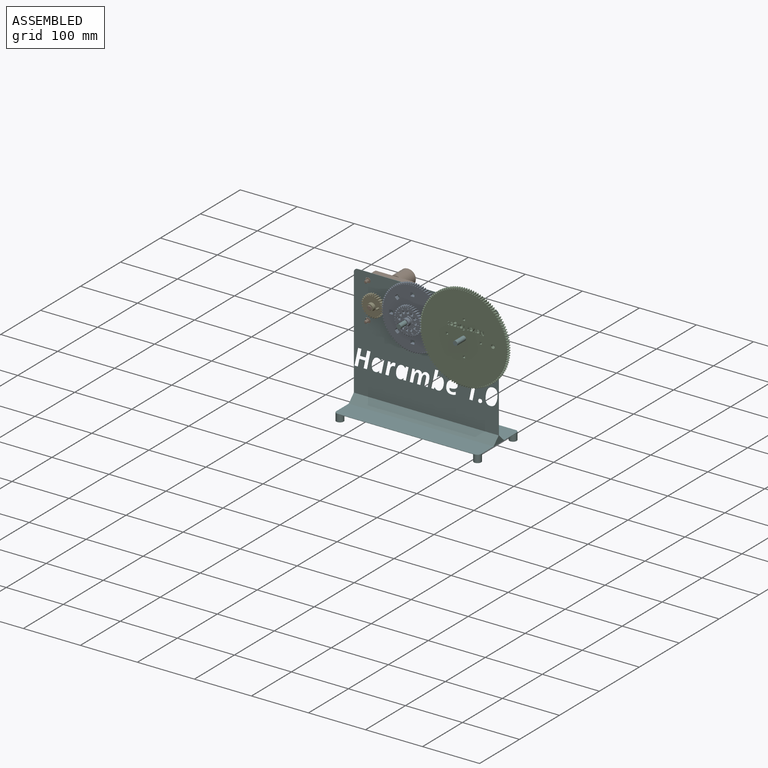
[diagram: assembled view]
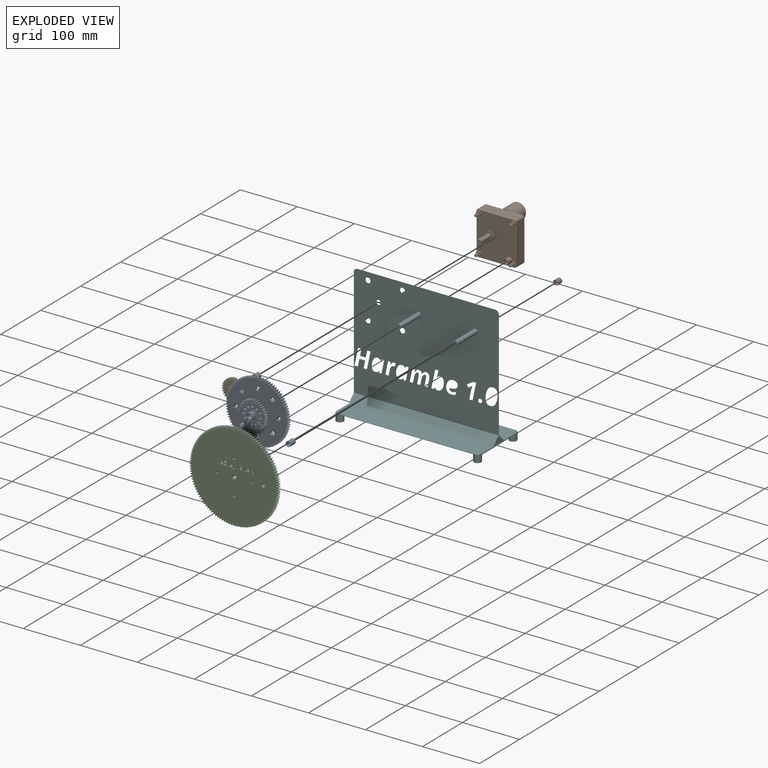
[diagram: exploded view]
GUIDED TOUR — MATED ASSEMBLY WITH SUBASSEMBLIES (Onshape document 69db58481a6f93a4a2a00892, AutoMate assembly 69db58481a6f93a4a2a00892_2e216adc01b97e4ef0a42dc2_9f874ee87bd83c54bac1a078_default)

This assembly has 10 component occurrences arranged in 9 top-level units: 8 individual components plus 1 subassembly (S0). The tour has two levels: first the top level, where each subassembly is treated as one rigid unit; then each subassembly is toured internally in its own section (nesting deeper than one subassembly level is flattened into its subassembly's section).

Components are labeled P0..P9 across the whole record; subassembly units are labeled S0..S0. A mate is a constraint between two units; its type names the relative motion it leaves free:
  FASTENED — locks the two components together rigidly (no relative motion),
  REVOLUTE — leaves rotation about the listed axis free (a hinge).
Axis/direction vectors are unit vectors and 'through' points are millimeter coordinates, both in the assembly's world frame.

TOP-LEVEL MATES (between units; each subassembly's internal mates are listed in its own section)
  1. FASTENED "Fastened 1": P2 <-> P6, direction (0.000, -1.000, 0.000) through (-188.32, -126.64, -29.86) mm
  2. FASTENED "Fastened 2": P7 <-> P6, direction (0.000, 1.000, 0.000) through (-188.32, -127.28, -29.86) mm
  3. REVOLUTE "Revolute 2": S0 <-> P8, axis (0.000, 1.000, 0.000) through (-117.20, -137.44, -29.86) mm
  4. FASTENED "Fastened 4": P8 <-> P6, direction (0.000, 1.000, 0.000) through (-117.20, -127.28, -29.86) mm
  5. FASTENED "Fastened 5": P4 <-> P9, direction (0.000, -1.000, 0.000) through (-18.14, -137.44, -29.86) mm
  6. REVOLUTE "Revolute 4": P3 <-> P9, axis (0.000, 1.000, 0.000) through (-18.14, -150.14, -29.86) mm
  7. FASTENED "Fastened 3": P4 <-> P6, direction (0.000, -1.000, 0.000) through (-18.14, -127.28, -29.86) mm
  8. REVOLUTE "Revolute 1": P5 <-> P7, axis (0.000, 1.000, 0.000) through (-188.32, -137.44, -29.86) mm

TOP-LEVEL ASSEMBLY ORDER
  1. P6 — the base component [order heuristic]
  2. P2 — core [order heuristic]
  3. P7 — core [order heuristic]
  4. S0 — core [order heuristic]
  5. P5 — core [order heuristic]
  6. P8 [order verified]
  7. P4 [order verified]
  8. P9 [order verified]
  9. P3 [order verified]
Order-tag legend:
  [order verified] — this step's position reverses a verified removal order: the component was checked to insert without passing through the ones already placed.
  [order heuristic] — the first 5 components form the assembly's core: parts whose collision-free extraction could not be verified, listed in mate-graph order.

Of the 10 component occurrences, 5 carry the full construction recipe — the FeatureScript program that regenerates the part's solid from scratch; the rest are supplied as boundary geometry only. Each toured unit is shown spotlighted twice — assembled, then exploded with a leader line back to its socket (green = recipe-attached component, orange = geometry-only, blue = subassembly unit; the rest desaturated gray).
NOTE — document 2 of 3 of this assembly tour. The two overview renders and the header above are repeated from document 1; the component sections below continue where the previous document stopped.
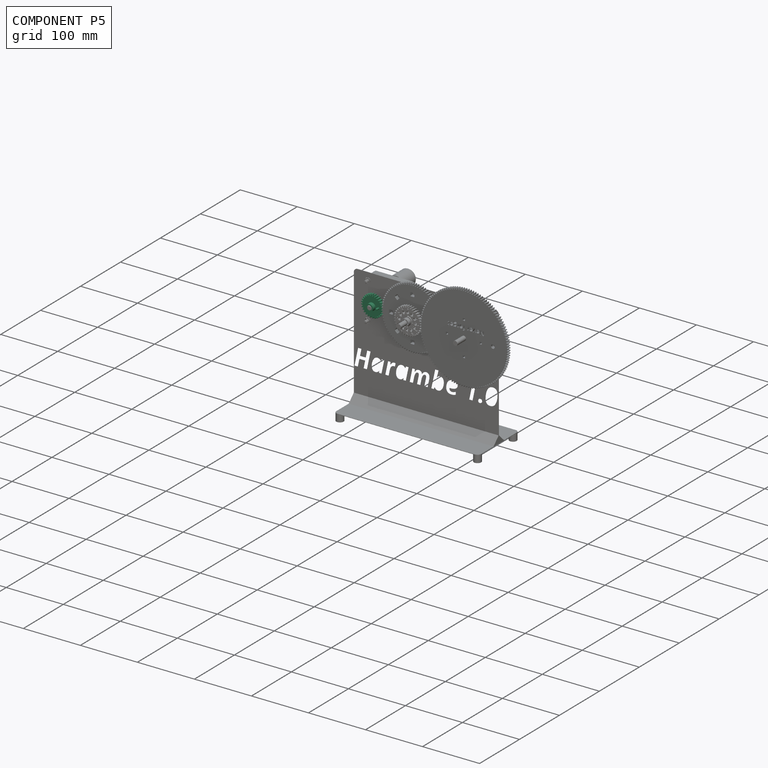
[diagram: component P5 — assembled]
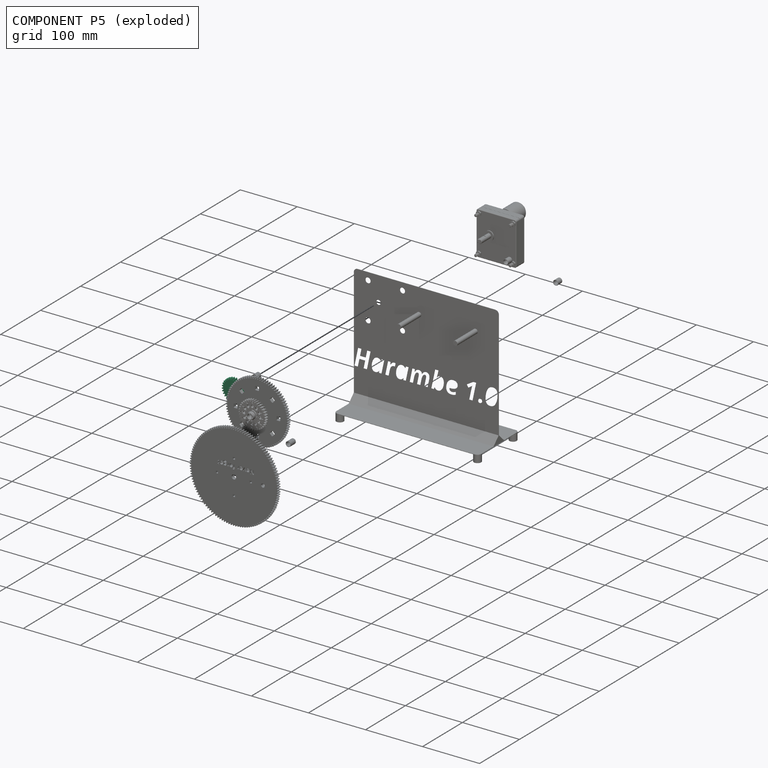
[diagram: component P5 — exploded]
COMPONENT P5 — recipe-attached (CADFS 00229648, mesh-verified: the recipe's output STEP matches this component's geometry to below the mesh-comparison resolution (tessellation chordal tolerance ~0.083 mm)).
Held by: REVOLUTE mate "Revolute 1" to P7.
Construction recipe (FeatureScript — the CAD program that rebuilds this solid; sketch coordinates are in the units given by the * unit suffixes, e.g. mm):

FeatureScript 1511;
import(path : "onshape/std/geometry.fs", version : "1511.0");
import(path : "onshape/std/common.fs", version : "1511.0");
const mm = millimeter;
const VERTEX = EntityType.VERTEX;
const EDGE = EntityType.EDGE;
const FACE = EntityType.FACE;
const BODY = EntityType.BODY;
function v(x, y){return vector(x, y);}
function OD(order){return orderDisambiguation(order);}
function OSD(set){return originalSetDisambiguation(set);}
function TD(topology){return topologyDisambiguation(topology);}
function TDD(query){return trueDependencyDisambiguation(query);}
function sQuery(a, b, c) {return sketchEntityQuery(a, b, c);}

annotation { "Feature Type Name" : "Feature", "Feature Type Description" : "" }
export const myFeature = defineFeature(function(context is Context, id is Id, definition is map)
    precondition{}
    {
        {
            var Q0;
            Q0=qCreatedBy(makeId("Front.planeOp"),FACE);
            var sketch = newSketch(context, id + "F0", { "sketchPlane" : qUnion([Q0])});
            skArc(sketch, "E0", {"start": v(-2, 16.39) * mm, "mid": v(-2.77, 16.28) * mm, "end": v(-3.53, 16.13) * mm});
            skArc(sketch, "E1.trimOffspring", {"start": v(-0.01, 17.8) * mm, "mid": v(-0.3, 18.42) * mm, "end": v(-0.7, 18.98) * mm});
            skLineSegment(sketch, "E2", {"start": v(-0.81, 19.04) * mm, "end": v(-1.07, 19.04) * mm});
            skLineSegment(sketch, "E3", {"start": v(0, 17.75) * mm, "end": v(0, 16.66) * mm});
            skLineSegment(sketch, "E4.MirrorCS", {"start": v(-1.33, 19) * mm, "end": v(-1.07, 19.04) * mm});
            skArc(sketch, "E5.MirrorCS", {"start": v(-1.98, 17.7) * mm, "mid": v(-1.76, 18.34) * mm, "end": v(-1.44, 18.94) * mm});
            skLineSegment(sketch, "E6.MirrorCS", {"start": v(-1.99, 17.64) * mm, "end": v(-1.87, 16.56) * mm});
            skPoint(sketch, "E7.orphan", {"position": v(0, 16.2) * mm});
            skPoint(sketch, "E8.orphan", {"position": v(-1.81, 16.1) * mm});
            skPoint(sketch, "E9.visualSharp", {"position": v(-1.85, 16.4) * mm});
            skArc(sketch, "E9.filletArc", {"start": v(-2, 16.39) * mm, "mid": v(-1.9, 16.45) * mm, "end": v(-1.87, 16.56) * mm});
            skPoint(sketch, "E10.visualSharp", {"position": v(0, 16.51) * mm});
            skArc(sketch, "E10.filletArc", {"start": v(0, 16.66) * mm, "mid": v(0.04, 16.55) * mm, "end": v(0.15, 16.5) * mm});
            skPoint(sketch, "E11.visualSharp", {"position": v(0, 17.78) * mm});
            skArc(sketch, "E11.filletArc", {"start": v(0, 17.75) * mm, "mid": v(0, 17.78) * mm, "end": v(-0.01, 17.8) * mm});
            skPoint(sketch, "E12.visualSharp", {"position": v(-0.74, 19.04) * mm});
            skArc(sketch, "E12.filletArc", {"start": v(-0.7, 18.98) * mm, "mid": v(-0.75, 19.02) * mm, "end": v(-0.81, 19.04) * mm});
            skPoint(sketch, "E13.visualSharp", {"position": v(-1.4, 19) * mm});
            skArc(sketch, "E13.filletArc", {"start": v(-1.33, 19) * mm, "mid": v(-1.39, 18.98) * mm, "end": v(-1.44, 18.94) * mm});
            skPoint(sketch, "E14.visualSharp", {"position": v(-2, 17.67) * mm});
            skArc(sketch, "E14.filletArc", {"start": v(-1.98, 17.7) * mm, "mid": v(-1.99, 17.67) * mm, "end": v(-1.99, 17.64) * mm});
            skArc(sketch, "E15.1.0", {"start": v(-3.97, 17.36) * mm, "mid": v(-4.4, 17.89) * mm, "end": v(-4.9, 18.35) * mm});
            skPoint(sketch, "E15.1.1", {"position": v(-5.59, 18.21) * mm});
            skPoint(sketch, "E15.1.2", {"position": v(-5.87, 16.78) * mm});
            skLineSegment(sketch, "E15.1.3", {"start": v(-3.95, 17.3) * mm, "end": v(-3.7, 16.24) * mm});
            skLineSegment(sketch, "E15.1.4", {"start": v(-5.86, 16.76) * mm, "end": v(-5.5, 15.73) * mm});
            skArc(sketch, "E15.1.5", {"start": v(-5.87, 16.81) * mm, "mid": v(-5.8, 17.49) * mm, "end": v(-5.62, 18.14) * mm});
            skPoint(sketch, "E15.1.6", {"position": v(-3.96, 17.33) * mm});
            skPoint(sketch, "E15.1.7", {"position": v(-4.96, 18.4) * mm});
            skLineSegment(sketch, "E15.1.8", {"start": v(-5.03, 18.38) * mm, "end": v(-5.28, 18.32) * mm});
            skLineSegment(sketch, "E15.1.9", {"start": v(-5.52, 18.24) * mm, "end": v(-5.28, 18.32) * mm});
            skArc(sketch, "E15.1.10", {"start": v(-5.87, 16.81) * mm, "mid": v(-5.87, 16.78) * mm, "end": v(-5.86, 16.76) * mm});
            skArc(sketch, "E15.1.11", {"start": v(-5.52, 18.24) * mm, "mid": v(-5.58, 18.2) * mm, "end": v(-5.62, 18.14) * mm});
            skArc(sketch, "E15.1.12", {"start": v(-4.9, 18.35) * mm, "mid": v(-4.96, 18.38) * mm, "end": v(-5.03, 18.38) * mm});
            skArc(sketch, "E15.1.13", {"start": v(-3.95, 17.3) * mm, "mid": v(-3.96, 17.33) * mm, "end": v(-3.97, 17.36) * mm});
            skArc(sketch, "E15.1.14", {"start": v(-5.6, 15.53) * mm, "mid": v(-5.5, 15.61) * mm, "end": v(-5.5, 15.73) * mm});
            skArc(sketch, "E15.1.15", {"start": v(-3.7, 16.24) * mm, "mid": v(-3.64, 16.15) * mm, "end": v(-3.53, 16.13) * mm});
            skArc(sketch, "E15.2.0", {"start": v(-7.74, 16.04) * mm, "mid": v(-8.27, 16.46) * mm, "end": v(-8.86, 16.8) * mm});
            skPoint(sketch, "E15.2.1", {"position": v(-9.5, 16.51) * mm});
            skPoint(sketch, "E15.2.2", {"position": v(-9.46, 15.05) * mm});
            skLineSegment(sketch, "E15.2.3", {"start": v(-7.7, 16) * mm, "end": v(-7.23, 15.01) * mm});
            skLineSegment(sketch, "E15.2.4", {"start": v(-9.44, 15.03) * mm, "end": v(-8.86, 14.1) * mm});
            skArc(sketch, "E15.2.5", {"start": v(-9.47, 15.08) * mm, "mid": v(-9.54, 15.76) * mm, "end": v(-9.51, 16.44) * mm});
            skPoint(sketch, "E15.2.6", {"position": v(-7.71, 16.02) * mm});
            skPoint(sketch, "E15.2.7", {"position": v(-8.92, 16.83) * mm});
            skLineSegment(sketch, "E15.2.8", {"start": v(-8.99, 16.8) * mm, "end": v(-9.22, 16.69) * mm});
            skLineSegment(sketch, "E15.2.9", {"start": v(-9.44, 16.55) * mm, "end": v(-9.22, 16.69) * mm});
            skArc(sketch, "E15.2.10", {"start": v(-9.47, 15.08) * mm, "mid": v(-9.46, 15.06) * mm, "end": v(-9.44, 15.03) * mm});
            skArc(sketch, "E15.2.11", {"start": v(-9.44, 16.55) * mm, "mid": v(-9.49, 16.5) * mm, "end": v(-9.51, 16.44) * mm});
            skArc(sketch, "E15.2.12", {"start": v(-8.86, 16.8) * mm, "mid": v(-8.92, 16.81) * mm, "end": v(-8.99, 16.8) * mm});
            skArc(sketch, "E15.2.13", {"start": v(-7.7, 16) * mm, "mid": v(-7.72, 16.02) * mm, "end": v(-7.74, 16.04) * mm});
            skArc(sketch, "E15.2.14", {"start": v(-8.91, 13.9) * mm, "mid": v(-8.84, 14) * mm, "end": v(-8.86, 14.1) * mm});
            skArc(sketch, "E15.2.15", {"start": v(-7.23, 15.01) * mm, "mid": v(-7.14, 14.93) * mm, "end": v(-7.03, 14.94) * mm});
            skArc(sketch, "E16.1.3.0", {"start": v(-11.11, 13.92) * mm, "mid": v(-11.72, 14.2) * mm, "end": v(-12.37, 14.4) * mm});
            skPoint(sketch, "E16.4.3.0", {"position": v(-12.94, 13.98) * mm});
            skPoint(sketch, "E16.5.3.0", {"position": v(-12.57, 12.57) * mm});
            skLineSegment(sketch, "E16.6.3.0", {"start": v(-11.07, 13.88) * mm, "end": v(-10.39, 13.03) * mm});
            skLineSegment(sketch, "E16.9.3.0", {"start": v(-12.55, 12.55) * mm, "end": v(-11.78, 11.78) * mm});
            skArc(sketch, "E16.12.3.0", {"start": v(-12.58, 12.6) * mm, "mid": v(-12.8, 13.24) * mm, "end": v(-12.93, 13.9) * mm});
            skPoint(sketch, "E16.16.3.0", {"position": v(-11.09, 13.9) * mm});
            skPoint(sketch, "E16.17.3.0", {"position": v(-12.45, 14.42) * mm});
            skLineSegment(sketch, "E16.18.3.0", {"start": v(-12.5, 14.38) * mm, "end": v(-12.7, 14.22) * mm});
            skLineSegment(sketch, "E16.21.3.0", {"start": v(-12.89, 14.03) * mm, "end": v(-12.7, 14.22) * mm});
            skArc(sketch, "E16.24.3.0", {"start": v(-12.58, 12.6) * mm, "mid": v(-12.57, 12.57) * mm, "end": v(-12.55, 12.55) * mm});
            skArc(sketch, "E16.28.3.0", {"start": v(-12.89, 14.03) * mm, "mid": v(-12.92, 13.98) * mm, "end": v(-12.93, 13.9) * mm});
            skArc(sketch, "E16.32.3.0", {"start": v(-12.37, 14.4) * mm, "mid": v(-12.44, 14.4) * mm, "end": v(-12.5, 14.38) * mm});
            skArc(sketch, "E16.36.3.0", {"start": v(-11.07, 13.88) * mm, "mid": v(-11.09, 13.9) * mm, "end": v(-11.11, 13.92) * mm});
            skArc(sketch, "E16.40.3.0", {"start": v(-11.78, 11.57) * mm, "mid": v(-11.74, 11.67) * mm, "end": v(-11.78, 11.78) * mm});
            skArc(sketch, "E16.44.3.0", {"start": v(-10.39, 13.03) * mm, "mid": v(-10.29, 12.97) * mm, "end": v(-10.18, 13) * mm});
            skArc(sketch, "E16.1.4.0", {"start": v(-13.93, 11.1) * mm, "mid": v(-14.6, 11.24) * mm, "end": v(-15.27, 11.3) * mm});
            skPoint(sketch, "E16.4.4.0", {"position": v(-15.72, 10.75) * mm});
            skPoint(sketch, "E16.5.4.0", {"position": v(-15.05, 9.46) * mm});
            skLineSegment(sketch, "E16.6.4.0", {"start": v(-13.88, 11.07) * mm, "end": v(-13.03, 10.39) * mm});
            skLineSegment(sketch, "E16.9.4.0", {"start": v(-15.03, 9.44) * mm, "end": v(-14.1, 8.86) * mm});
            skArc(sketch, "E16.12.4.0", {"start": v(-15.07, 9.48) * mm, "mid": v(-15.43, 10.06) * mm, "end": v(-15.7, 10.68) * mm});
            skPoint(sketch, "E16.16.4.0", {"position": v(-13.9, 11.09) * mm});
            skPoint(sketch, "E16.17.4.0", {"position": v(-15.34, 11.3) * mm});
            skLineSegment(sketch, "E16.18.4.0", {"start": v(-15.39, 11.23) * mm, "end": v(-15.55, 11.03) * mm});
            skLineSegment(sketch, "E16.21.4.0", {"start": v(-15.69, 10.81) * mm, "end": v(-15.55, 11.03) * mm});
            skArc(sketch, "E16.24.4.0", {"start": v(-15.07, 9.48) * mm, "mid": v(-15.05, 9.46) * mm, "end": v(-15.03, 9.44) * mm});
            skArc(sketch, "E16.28.4.0", {"start": v(-15.69, 10.81) * mm, "mid": v(-15.7, 10.75) * mm, "end": v(-15.7, 10.68) * mm});
            skArc(sketch, "E16.32.4.0", {"start": v(-15.27, 11.3) * mm, "mid": v(-15.34, 11.28) * mm, "end": v(-15.39, 11.23) * mm});
            skArc(sketch, "E16.36.4.0", {"start": v(-13.88, 11.07) * mm, "mid": v(-13.9, 11.08) * mm, "end": v(-13.93, 11.1) * mm});
            skArc(sketch, "E16.40.4.0", {"start": v(-14.06, 8.66) * mm, "mid": v(-14.04, 8.77) * mm, "end": v(-14.1, 8.86) * mm});
            skArc(sketch, "E16.44.4.0", {"start": v(-13.03, 10.39) * mm, "mid": v(-12.92, 10.36) * mm, "end": v(-12.81, 10.41) * mm});
            skArc(sketch, "E16.1.5.0", {"start": v(-16.05, 7.72) * mm, "mid": v(-16.73, 7.72) * mm, "end": v(-17.4, 7.61) * mm});
            skPoint(sketch, "E16.4.5.0", {"position": v(-17.72, 6.98) * mm});
            skPoint(sketch, "E16.5.5.0", {"position": v(-16.78, 5.87) * mm});
            skLineSegment(sketch, "E16.6.5.0", {"start": v(-16, 7.7) * mm, "end": v(-15.01, 7.23) * mm});
            skLineSegment(sketch, "E16.9.5.0", {"start": v(-16.76, 5.86) * mm, "end": v(-15.73, 5.5) * mm});
            skArc(sketch, "E16.12.5.0", {"start": v(-16.8, 5.9) * mm, "mid": v(-17.28, 6.37) * mm, "end": v(-17.69, 6.92) * mm});
            skPoint(sketch, "E16.16.5.0", {"position": v(-16.02, 7.71) * mm});
            skPoint(sketch, "E16.17.5.0", {"position": v(-17.47, 7.6) * mm});
            skLineSegment(sketch, "E16.18.5.0", {"start": v(-17.5, 7.53) * mm, "end": v(-17.61, 7.3) * mm});
            skLineSegment(sketch, "E16.21.5.0", {"start": v(-17.7, 7.05) * mm, "end": v(-17.61, 7.3) * mm});
            skArc(sketch, "E16.24.5.0", {"start": v(-16.8, 5.9) * mm, "mid": v(-16.78, 5.87) * mm, "end": v(-16.76, 5.86) * mm});
            skArc(sketch, "E16.28.5.0", {"start": v(-17.7, 7.05) * mm, "mid": v(-17.7, 6.99) * mm, "end": v(-17.69, 6.92) * mm});
            skArc(sketch, "E16.32.5.0", {"start": v(-17.4, 7.61) * mm, "mid": v(-17.46, 7.58) * mm, "end": v(-17.5, 7.53) * mm});
            skArc(sketch, "E16.36.5.0", {"start": v(-16, 7.7) * mm, "mid": v(-16.02, 7.71) * mm, "end": v(-16.05, 7.72) * mm});
            skArc(sketch, "E16.40.5.0", {"start": v(-15.63, 5.31) * mm, "mid": v(-15.64, 5.43) * mm, "end": v(-15.73, 5.5) * mm});
            skArc(sketch, "E16.44.5.0", {"start": v(-15.01, 7.23) * mm, "mid": v(-14.9, 7.22) * mm, "end": v(-14.8, 7.3) * mm});
            skArc(sketch, "E16.1.6.0", {"start": v(-17.36, 3.95) * mm, "mid": v(-18.03, 3.8) * mm, "end": v(-18.66, 3.55) * mm});
            skPoint(sketch, "E16.4.6.0", {"position": v(-18.83, 2.87) * mm});
            skPoint(sketch, "E16.5.6.0", {"position": v(-17.67, 2) * mm});
            skLineSegment(sketch, "E16.6.6.0", {"start": v(-17.3, 3.95) * mm, "end": v(-16.24, 3.7) * mm});
            skLineSegment(sketch, "E16.9.6.0", {"start": v(-17.64, 1.99) * mm, "end": v(-16.56, 1.87) * mm});
            skArc(sketch, "E16.12.6.0", {"start": v(-17.7, 2) * mm, "mid": v(-18.27, 2.37) * mm, "end": v(-18.78, 2.81) * mm});
            skPoint(sketch, "E16.16.6.0", {"position": v(-17.33, 3.96) * mm});
            skPoint(sketch, "E16.17.6.0", {"position": v(-18.72, 3.52) * mm});
            skLineSegment(sketch, "E16.18.6.0", {"start": v(-18.74, 3.45) * mm, "end": v(-18.8, 3.2) * mm});
            skLineSegment(sketch, "E16.21.6.0", {"start": v(-18.83, 2.94) * mm, "end": v(-18.8, 3.2) * mm});
            skArc(sketch, "E16.24.6.0", {"start": v(-17.7, 2) * mm, "mid": v(-17.67, 2) * mm, "end": v(-17.64, 1.99) * mm});
            skArc(sketch, "E16.28.6.0", {"start": v(-18.83, 2.94) * mm, "mid": v(-18.82, 2.87) * mm, "end": v(-18.78, 2.81) * mm});
            skArc(sketch, "E16.32.6.0", {"start": v(-18.66, 3.55) * mm, "mid": v(-18.7, 3.5) * mm, "end": v(-18.74, 3.45) * mm});
            skArc(sketch, "E16.36.6.0", {"start": v(-17.3, 3.95) * mm, "mid": v(-17.33, 3.95) * mm, "end": v(-17.36, 3.95) * mm});
            skArc(sketch, "E16.40.6.0", {"start": v(-16.42, 1.7) * mm, "mid": v(-16.46, 1.8) * mm, "end": v(-16.56, 1.87) * mm});
            skArc(sketch, "E16.44.6.0", {"start": v(-16.24, 3.7) * mm, "mid": v(-16.13, 3.73) * mm, "end": v(-16.06, 3.82) * mm});
            skArc(sketch, "E16.1.7.0", {"start": v(-17.8, -0.01) * mm, "mid": v(-18.42, -0.3) * mm, "end": v(-18.98, -0.7) * mm});
            skPoint(sketch, "E16.4.7.0", {"position": v(-19, -1.4) * mm});
            skPoint(sketch, "E16.5.7.0", {"position": v(-17.67, -2) * mm});
            skLineSegment(sketch, "E16.6.7.0", {"start": v(-17.75, 0) * mm, "end": v(-16.66, 0) * mm});
            skLineSegment(sketch, "E16.9.7.0", {"start": v(-17.64, -1.99) * mm, "end": v(-16.56, -1.87) * mm});
            skArc(sketch, "E16.12.7.0", {"start": v(-17.7, -1.98) * mm, "mid": v(-18.34, -1.76) * mm, "end": v(-18.94, -1.44) * mm});
            skPoint(sketch, "E16.16.7.0", {"position": v(-17.78, 0) * mm});
            skPoint(sketch, "E16.17.7.0", {"position": v(-19.04, -0.74) * mm});
            skLineSegment(sketch, "E16.18.7.0", {"start": v(-19.04, -0.81) * mm, "end": v(-19.04, -1.07) * mm});
            skLineSegment(sketch, "E16.21.7.0", {"start": v(-19, -1.33) * mm, "end": v(-19.04, -1.07) * mm});
            skArc(sketch, "E16.24.7.0", {"start": v(-17.7, -1.98) * mm, "mid": v(-17.67, -1.99) * mm, "end": v(-17.64, -1.99) * mm});
            skArc(sketch, "E16.28.7.0", {"start": v(-19, -1.33) * mm, "mid": v(-18.98, -1.39) * mm, "end": v(-18.94, -1.44) * mm});
            skArc(sketch, "E16.32.7.0", {"start": v(-18.98, -0.7) * mm, "mid": v(-19.02, -0.75) * mm, "end": v(-19.04, -0.81) * mm});
            skArc(sketch, "E16.36.7.0", {"start": v(-17.75, 0) * mm, "mid": v(-17.78, 0) * mm, "end": v(-17.8, -0.01) * mm});
            skArc(sketch, "E16.40.7.0", {"start": v(-16.39, -2) * mm, "mid": v(-16.45, -1.9) * mm, "end": v(-16.56, -1.87) * mm});
            skArc(sketch, "E16.44.7.0", {"start": v(-16.66, 0) * mm, "mid": v(-16.55, 0.04) * mm, "end": v(-16.5, 0.15) * mm});
            skArc(sketch, "E16.1.8.0", {"start": v(-17.36, -3.97) * mm, "mid": v(-17.89, -4.4) * mm, "end": v(-18.35, -4.9) * mm});
            skPoint(sketch, "E16.4.8.0", {"position": v(-18.21, -5.59) * mm});
            skPoint(sketch, "E16.5.8.0", {"position": v(-16.78, -5.87) * mm});
            skLineSegment(sketch, "E16.6.8.0", {"start": v(-17.3, -3.95) * mm, "end": v(-16.24, -3.7) * mm});
            skLineSegment(sketch, "E16.9.8.0", {"start": v(-16.76, -5.86) * mm, "end": v(-15.73, -5.5) * mm});
            skArc(sketch, "E16.12.8.0", {"start": v(-16.81, -5.87) * mm, "mid": v(-17.49, -5.8) * mm, "end": v(-18.14, -5.62) * mm});
            skPoint(sketch, "E16.16.8.0", {"position": v(-17.33, -3.96) * mm});
            skPoint(sketch, "E16.17.8.0", {"position": v(-18.4, -4.96) * mm});
            skLineSegment(sketch, "E16.18.8.0", {"start": v(-18.38, -5.03) * mm, "end": v(-18.32, -5.28) * mm});
            skLineSegment(sketch, "E16.21.8.0", {"start": v(-18.24, -5.52) * mm, "end": v(-18.32, -5.28) * mm});
            skArc(sketch, "E16.24.8.0", {"start": v(-16.81, -5.87) * mm, "mid": v(-16.78, -5.87) * mm, "end": v(-16.76, -5.86) * mm});
            skArc(sketch, "E16.28.8.0", {"start": v(-18.24, -5.52) * mm, "mid": v(-18.2, -5.58) * mm, "end": v(-18.14, -5.62) * mm});
            skArc(sketch, "E16.32.8.0", {"start": v(-18.35, -4.9) * mm, "mid": v(-18.38, -4.96) * mm, "end": v(-18.38, -5.03) * mm});
            skArc(sketch, "E16.36.8.0", {"start": v(-17.3, -3.95) * mm, "mid": v(-17.33, -3.96) * mm, "end": v(-17.36, -3.97) * mm});
            skArc(sketch, "E16.40.8.0", {"start": v(-15.53, -5.6) * mm, "mid": v(-15.61, -5.5) * mm, "end": v(-15.73, -5.5) * mm});
            skArc(sketch, "E16.44.8.0", {"start": v(-16.24, -3.7) * mm, "mid": v(-16.15, -3.64) * mm, "end": v(-16.13, -3.53) * mm});
            skArc(sketch, "E16.1.9.0", {"start": v(-16.04, -7.74) * mm, "mid": v(-16.46, -8.27) * mm, "end": v(-16.8, -8.86) * mm});
            skPoint(sketch, "E16.4.9.0", {"position": v(-16.51, -9.5) * mm});
            skPoint(sketch, "E16.5.9.0", {"position": v(-15.05, -9.46) * mm});
            skLineSegment(sketch, "E16.6.9.0", {"start": v(-16, -7.7) * mm, "end": v(-15.01, -7.23) * mm});
            skLineSegment(sketch, "E16.9.9.0", {"start": v(-15.03, -9.44) * mm, "end": v(-14.1, -8.86) * mm});
            skArc(sketch, "E16.12.9.0", {"start": v(-15.08, -9.47) * mm, "mid": v(-15.76, -9.54) * mm, "end": v(-16.44, -9.51) * mm});
            skPoint(sketch, "E16.16.9.0", {"position": v(-16.02, -7.71) * mm});
            skPoint(sketch, "E16.17.9.0", {"position": v(-16.83, -8.92) * mm});
            skLineSegment(sketch, "E16.18.9.0", {"start": v(-16.8, -8.99) * mm, "end": v(-16.69, -9.22) * mm});
            skLineSegment(sketch, "E16.21.9.0", {"start": v(-16.55, -9.44) * mm, "end": v(-16.69, -9.22) * mm});
            skArc(sketch, "E16.24.9.0", {"start": v(-15.08, -9.47) * mm, "mid": v(-15.06, -9.46) * mm, "end": v(-15.03, -9.44) * mm});
            skArc(sketch, "E16.28.9.0", {"start": v(-16.55, -9.44) * mm, "mid": v(-16.5, -9.49) * mm, "end": v(-16.44, -9.51) * mm});
            skArc(sketch, "E16.32.9.0", {"start": v(-16.8, -8.86) * mm, "mid": v(-16.81, -8.92) * mm, "end": v(-16.8, -8.99) * mm});
            skArc(sketch, "E16.36.9.0", {"start": v(-16, -7.7) * mm, "mid": v(-16.02, -7.72) * mm, "end": v(-16.04, -7.74) * mm});
            skArc(sketch, "E16.40.9.0", {"start": v(-13.9, -8.91) * mm, "mid": v(-14, -8.84) * mm, "end": v(-14.1, -8.86) * mm});
            skArc(sketch, "E16.44.9.0", {"start": v(-15.01, -7.23) * mm, "mid": v(-14.93, -7.14) * mm, "end": v(-14.94, -7.03) * mm});
            skArc(sketch, "E16.1.10.0", {"start": v(-13.92, -11.11) * mm, "mid": v(-14.2, -11.72) * mm, "end": v(-14.4, -12.37) * mm});
            skPoint(sketch, "E16.4.10.0", {"position": v(-13.98, -12.94) * mm});
            skPoint(sketch, "E16.5.10.0", {"position": v(-12.57, -12.57) * mm});
            skLineSegment(sketch, "E16.6.10.0", {"start": v(-13.88, -11.07) * mm, "end": v(-13.03, -10.39) * mm});
            skLineSegment(sketch, "E16.9.10.0", {"start": v(-12.55, -12.55) * mm, "end": v(-11.78, -11.78) * mm});
            skArc(sketch, "E16.12.10.0", {"start": v(-12.6, -12.58) * mm, "mid": v(-13.24, -12.8) * mm, "end": v(-13.9, -12.93) * mm});
            skPoint(sketch, "E16.16.10.0", {"position": v(-13.9, -11.09) * mm});
            skPoint(sketch, "E16.17.10.0", {"position": v(-14.42, -12.45) * mm});
            skLineSegment(sketch, "E16.18.10.0", {"start": v(-14.38, -12.5) * mm, "end": v(-14.22, -12.7) * mm});
            skLineSegment(sketch, "E16.21.10.0", {"start": v(-14.03, -12.89) * mm, "end": v(-14.22, -12.7) * mm});
            skArc(sketch, "E16.24.10.0", {"start": v(-12.6, -12.58) * mm, "mid": v(-12.57, -12.57) * mm, "end": v(-12.55, -12.55) * mm});
            skArc(sketch, "E16.28.10.0", {"start": v(-14.03, -12.89) * mm, "mid": v(-13.98, -12.92) * mm, "end": v(-13.9, -12.93) * mm});
            skArc(sketch, "E16.32.10.0", {"start": v(-14.4, -12.37) * mm, "mid": v(-14.4, -12.44) * mm, "end": v(-14.38, -12.5) * mm});
            skArc(sketch, "E16.36.10.0", {"start": v(-13.88, -11.07) * mm, "mid": v(-13.9, -11.09) * mm, "end": v(-13.92, -11.11) * mm});
            skArc(sketch, "E16.40.10.0", {"start": v(-11.57, -11.78) * mm, "mid": v(-11.67, -11.74) * mm, "end": v(-11.78, -11.78) * mm});
            skArc(sketch, "E16.44.10.0", {"start": v(-13.03, -10.39) * mm, "mid": v(-12.97, -10.29) * mm, "end": v(-13, -10.18) * mm});
            skArc(sketch, "E16.1.11.0", {"start": v(-11.1, -13.93) * mm, "mid": v(-11.24, -14.6) * mm, "end": v(-11.3, -15.27) * mm});
            skPoint(sketch, "E16.4.11.0", {"position": v(-10.75, -15.72) * mm});
            skPoint(sketch, "E16.5.11.0", {"position": v(-9.46, -15.05) * mm});
            skLineSegment(sketch, "E16.6.11.0", {"start": v(-11.07, -13.88) * mm, "end": v(-10.39, -13.03) * mm});
            skLineSegment(sketch, "E16.9.11.0", {"start": v(-9.44, -15.03) * mm, "end": v(-8.86, -14.1) * mm});
            skArc(sketch, "E16.12.11.0", {"start": v(-9.48, -15.07) * mm, "mid": v(-10.06, -15.43) * mm, "end": v(-10.68, -15.7) * mm});
            skPoint(sketch, "E16.16.11.0", {"position": v(-11.09, -13.9) * mm});
            skPoint(sketch, "E16.17.11.0", {"position": v(-11.3, -15.34) * mm});
            skLineSegment(sketch, "E16.18.11.0", {"start": v(-11.23, -15.39) * mm, "end": v(-11.03, -15.55) * mm});
            skLineSegment(sketch, "E16.21.11.0", {"start": v(-10.81, -15.69) * mm, "end": v(-11.03, -15.55) * mm});
            skArc(sketch, "E16.24.11.0", {"start": v(-9.48, -15.07) * mm, "mid": v(-9.46, -15.05) * mm, "end": v(-9.44, -15.03) * mm});
            skArc(sketch, "E16.28.11.0", {"start": v(-10.81, -15.69) * mm, "mid": v(-10.75, -15.7) * mm, "end": v(-10.68, -15.7) * mm});
            skArc(sketch, "E16.32.11.0", {"start": v(-11.3, -15.27) * mm, "mid": v(-11.28, -15.34) * mm, "end": v(-11.23, -15.39) * mm});
            skArc(sketch, "E16.36.11.0", {"start": v(-11.07, -13.88) * mm, "mid": v(-11.08, -13.9) * mm, "end": v(-11.1, -13.93) * mm});
            skArc(sketch, "E16.40.11.0", {"start": v(-8.66, -14.06) * mm, "mid": v(-8.77, -14.04) * mm, "end": v(-8.86, -14.1) * mm});
            skArc(sketch, "E16.44.11.0", {"start": v(-10.39, -13.03) * mm, "mid": v(-10.36, -12.92) * mm, "end": v(-10.41, -12.81) * mm});
            skArc(sketch, "E16.1.12.0", {"start": v(-7.72, -16.05) * mm, "mid": v(-7.72, -16.73) * mm, "end": v(-7.61, -17.4) * mm});
            skPoint(sketch, "E16.4.12.0", {"position": v(-6.98, -17.72) * mm});
            skPoint(sketch, "E16.5.12.0", {"position": v(-5.87, -16.78) * mm});
            skLineSegment(sketch, "E16.6.12.0", {"start": v(-7.7, -16) * mm, "end": v(-7.23, -15.01) * mm});
            skLineSegment(sketch, "E16.9.12.0", {"start": v(-5.86, -16.76) * mm, "end": v(-5.5, -15.73) * mm});
            skArc(sketch, "E16.12.12.0", {"start": v(-5.9, -16.8) * mm, "mid": v(-6.37, -17.28) * mm, "end": v(-6.92, -17.69) * mm});
            skPoint(sketch, "E16.16.12.0", {"position": v(-7.71, -16.02) * mm});
            skPoint(sketch, "E16.17.12.0", {"position": v(-7.6, -17.47) * mm});
            skLineSegment(sketch, "E16.18.12.0", {"start": v(-7.53, -17.5) * mm, "end": v(-7.3, -17.61) * mm});
            skLineSegment(sketch, "E16.21.12.0", {"start": v(-7.05, -17.7) * mm, "end": v(-7.3, -17.61) * mm});
            skArc(sketch, "E16.24.12.0", {"start": v(-5.9, -16.8) * mm, "mid": v(-5.87, -16.78) * mm, "end": v(-5.86, -16.76) * mm});
            skArc(sketch, "E16.28.12.0", {"start": v(-7.05, -17.7) * mm, "mid": v(-6.99, -17.7) * mm, "end": v(-6.92, -17.69) * mm});
            skArc(sketch, "E16.32.12.0", {"start": v(-7.61, -17.4) * mm, "mid": v(-7.58, -17.46) * mm, "end": v(-7.53, -17.5) * mm});
            skArc(sketch, "E16.36.12.0", {"start": v(-7.7, -16) * mm, "mid": v(-7.71, -16.02) * mm, "end": v(-7.72, -16.05) * mm});
            skArc(sketch, "E16.40.12.0", {"start": v(-5.31, -15.63) * mm, "mid": v(-5.43, -15.64) * mm, "end": v(-5.5, -15.73) * mm});
            skArc(sketch, "E16.44.12.0", {"start": v(-7.23, -15.01) * mm, "mid": v(-7.22, -14.9) * mm, "end": v(-7.3, -14.8) * mm});
            skArc(sketch, "E16.1.13.0", {"start": v(-3.95, -17.36) * mm, "mid": v(-3.8, -18.03) * mm, "end": v(-3.55, -18.66) * mm});
            skPoint(sketch, "E16.4.13.0", {"position": v(-2.87, -18.83) * mm});
            skPoint(sketch, "E16.5.13.0", {"position": v(-2, -17.67) * mm});
            skLineSegment(sketch, "E16.6.13.0", {"start": v(-3.95, -17.3) * mm, "end": v(-3.7, -16.24) * mm});
            skLineSegment(sketch, "E16.9.13.0", {"start": v(-1.99, -17.64) * mm, "end": v(-1.87, -16.56) * mm});
            skArc(sketch, "E16.12.13.0", {"start": v(-2, -17.7) * mm, "mid": v(-2.37, -18.27) * mm, "end": v(-2.81, -18.78) * mm});
            skPoint(sketch, "E16.16.13.0", {"position": v(-3.96, -17.33) * mm});
            skPoint(sketch, "E16.17.13.0", {"position": v(-3.52, -18.72) * mm});
            skLineSegment(sketch, "E16.18.13.0", {"start": v(-3.45, -18.74) * mm, "end": v(-3.2, -18.8) * mm});
            skLineSegment(sketch, "E16.21.13.0", {"start": v(-2.94, -18.83) * mm, "end": v(-3.2, -18.8) * mm});
            skArc(sketch, "E16.24.13.0", {"start": v(-2, -17.7) * mm, "mid": v(-2, -17.67) * mm, "end": v(-1.99, -17.64) * mm});
            skArc(sketch, "E16.28.13.0", {"start": v(-2.94, -18.83) * mm, "mid": v(-2.87, -18.82) * mm, "end": v(-2.81, -18.78) * mm});
            skArc(sketch, "E16.32.13.0", {"start": v(-3.55, -18.66) * mm, "mid": v(-3.5, -18.7) * mm, "end": v(-3.45, -18.74) * mm});
            skArc(sketch, "E16.36.13.0", {"start": v(-3.95, -17.3) * mm, "mid": v(-3.95, -17.33) * mm, "end": v(-3.95, -17.36) * mm});
            skArc(sketch, "E16.40.13.0", {"start": v(-1.7, -16.42) * mm, "mid": v(-1.8, -16.46) * mm, "end": v(-1.87, -16.56) * mm});
            skArc(sketch, "E16.44.13.0", {"start": v(-3.7, -16.24) * mm, "mid": v(-3.73, -16.13) * mm, "end": v(-3.82, -16.06) * mm});
            skArc(sketch, "E16.1.14.0", {"start": v(0.01, -17.8) * mm, "mid": v(0.3, -18.42) * mm, "end": v(0.7, -18.98) * mm});
            skPoint(sketch, "E16.4.14.0", {"position": v(1.4, -19) * mm});
            skPoint(sketch, "E16.5.14.0", {"position": v(2, -17.67) * mm});
            skLineSegment(sketch, "E16.6.14.0", {"start": v(0, -17.75) * mm, "end": v(0, -16.66) * mm});
            skLineSegment(sketch, "E16.9.14.0", {"start": v(1.99, -17.64) * mm, "end": v(1.87, -16.56) * mm});
            skArc(sketch, "E16.12.14.0", {"start": v(1.98, -17.7) * mm, "mid": v(1.76, -18.34) * mm, "end": v(1.44, -18.94) * mm});
            skPoint(sketch, "E16.16.14.0", {"position": v(0, -17.78) * mm});
            skPoint(sketch, "E16.17.14.0", {"position": v(0.74, -19.04) * mm});
            skLineSegment(sketch, "E16.18.14.0", {"start": v(0.81, -19.04) * mm, "end": v(1.07, -19.04) * mm});
            skLineSegment(sketch, "E16.21.14.0", {"start": v(1.33, -19) * mm, "end": v(1.07, -19.04) * mm});
            skArc(sketch, "E16.24.14.0", {"start": v(1.98, -17.7) * mm, "mid": v(1.99, -17.67) * mm, "end": v(1.99, -17.64) * mm});
            skArc(sketch, "E16.28.14.0", {"start": v(1.33, -19) * mm, "mid": v(1.39, -18.98) * mm, "end": v(1.44, -18.94) * mm});
            skArc(sketch, "E16.32.14.0", {"start": v(0.7, -18.98) * mm, "mid": v(0.75, -19.02) * mm, "end": v(0.81, -19.04) * mm});
            skArc(sketch, "E16.36.14.0", {"start": v(0, -17.75) * mm, "mid": v(0, -17.78) * mm, "end": v(0.01, -17.8) * mm});
            skArc(sketch, "E16.40.14.0", {"start": v(2, -16.39) * mm, "mid": v(1.9, -16.45) * mm, "end": v(1.87, -16.56) * mm});
            skArc(sketch, "E16.44.14.0", {"start": v(0, -16.66) * mm, "mid": v(-0.04, -16.55) * mm, "end": v(-0.15, -16.5) * mm});
            skArc(sketch, "E16.1.15.0", {"start": v(3.97, -17.36) * mm, "mid": v(4.4, -17.89) * mm, "end": v(4.9, -18.35) * mm});
            skPoint(sketch, "E16.4.15.0", {"position": v(5.59, -18.21) * mm});
            skPoint(sketch, "E16.5.15.0", {"position": v(5.87, -16.78) * mm});
            skLineSegment(sketch, "E16.6.15.0", {"start": v(3.95, -17.3) * mm, "end": v(3.7, -16.24) * mm});
            skLineSegment(sketch, "E16.9.15.0", {"start": v(5.86, -16.76) * mm, "end": v(5.5, -15.73) * mm});
            skArc(sketch, "E16.12.15.0", {"start": v(5.87, -16.81) * mm, "mid": v(5.8, -17.49) * mm, "end": v(5.62, -18.14) * mm});
            skPoint(sketch, "E16.16.15.0", {"position": v(3.96, -17.33) * mm});
            skPoint(sketch, "E16.17.15.0", {"position": v(4.96, -18.4) * mm});
            skLineSegment(sketch, "E16.18.15.0", {"start": v(5.03, -18.38) * mm, "end": v(5.28, -18.32) * mm});
            skLineSegment(sketch, "E16.21.15.0", {"start": v(5.52, -18.24) * mm, "end": v(5.28, -18.32) * mm});
            skArc(sketch, "E16.24.15.0", {"start": v(5.87, -16.81) * mm, "mid": v(5.87, -16.78) * mm, "end": v(5.86, -16.76) * mm});
            skArc(sketch, "E16.28.15.0", {"start": v(5.52, -18.24) * mm, "mid": v(5.58, -18.2) * mm, "end": v(5.62, -18.14) * mm});
            skArc(sketch, "E16.32.15.0", {"start": v(4.9, -18.35) * mm, "mid": v(4.96, -18.38) * mm, "end": v(5.03, -18.38) * mm});
            skArc(sketch, "E16.36.15.0", {"start": v(3.95, -17.3) * mm, "mid": v(3.96, -17.33) * mm, "end": v(3.97, -17.36) * mm});
            skArc(sketch, "E16.40.15.0", {"start": v(5.6, -15.53) * mm, "mid": v(5.5, -15.61) * mm, "end": v(5.5, -15.73) * mm});
            skArc(sketch, "E16.44.15.0", {"start": v(3.7, -16.24) * mm, "mid": v(3.64, -16.15) * mm, "end": v(3.53, -16.13) * mm});
            skArc(sketch, "E16.1.16.0", {"start": v(7.74, -16.04) * mm, "mid": v(8.27, -16.46) * mm, "end": v(8.86, -16.8) * mm});
            skPoint(sketch, "E16.4.16.0", {"position": v(9.5, -16.51) * mm});
            skPoint(sketch, "E16.5.16.0", {"position": v(9.46, -15.05) * mm});
            skLineSegment(sketch, "E16.6.16.0", {"start": v(7.7, -16) * mm, "end": v(7.23, -15.01) * mm});
            skLineSegment(sketch, "E16.9.16.0", {"start": v(9.44, -15.03) * mm, "end": v(8.86, -14.1) * mm});
            skArc(sketch, "E16.12.16.0", {"start": v(9.47, -15.08) * mm, "mid": v(9.54, -15.76) * mm, "end": v(9.51, -16.44) * mm});
            skPoint(sketch, "E16.16.16.0", {"position": v(7.71, -16.02) * mm});
            skPoint(sketch, "E16.17.16.0", {"position": v(8.92, -16.83) * mm});
            skLineSegment(sketch, "E16.18.16.0", {"start": v(8.99, -16.8) * mm, "end": v(9.22, -16.69) * mm});
            skLineSegment(sketch, "E16.21.16.0", {"start": v(9.44, -16.55) * mm, "end": v(9.22, -16.69) * mm});
            skArc(sketch, "E16.24.16.0", {"start": v(9.47, -15.08) * mm, "mid": v(9.46, -15.06) * mm, "end": v(9.44, -15.03) * mm});
            skArc(sketch, "E16.28.16.0", {"start": v(9.44, -16.55) * mm, "mid": v(9.49, -16.5) * mm, "end": v(9.51, -16.44) * mm});
            skArc(sketch, "E16.32.16.0", {"start": v(8.86, -16.8) * mm, "mid": v(8.92, -16.81) * mm, "end": v(8.99, -16.8) * mm});
            skArc(sketch, "E16.36.16.0", {"start": v(7.7, -16) * mm, "mid": v(7.72, -16.02) * mm, "end": v(7.74, -16.04) * mm});
            skArc(sketch, "E16.40.16.0", {"start": v(8.91, -13.9) * mm, "mid": v(8.84, -14) * mm, "end": v(8.86, -14.1) * mm});
            skArc(sketch, "E16.44.16.0", {"start": v(7.23, -15.01) * mm, "mid": v(7.14, -14.93) * mm, "end": v(7.03, -14.94) * mm});
            skArc(sketch, "E16.1.17.0", {"start": v(11.11, -13.92) * mm, "mid": v(11.72, -14.2) * mm, "end": v(12.37, -14.4) * mm});
            skPoint(sketch, "E16.4.17.0", {"position": v(12.94, -13.98) * mm});
            skPoint(sketch, "E16.5.17.0", {"position": v(12.57, -12.57) * mm});
            skLineSegment(sketch, "E16.6.17.0", {"start": v(11.07, -13.88) * mm, "end": v(10.39, -13.03) * mm});
            skLineSegment(sketch, "E16.9.17.0", {"start": v(12.55, -12.55) * mm, "end": v(11.78, -11.78) * mm});
            skArc(sketch, "E16.12.17.0", {"start": v(12.58, -12.6) * mm, "mid": v(12.8, -13.24) * mm, "end": v(12.93, -13.9) * mm});
            skPoint(sketch, "E16.16.17.0", {"position": v(11.09, -13.9) * mm});
            skPoint(sketch, "E16.17.17.0", {"position": v(12.45, -14.42) * mm});
            skLineSegment(sketch, "E16.18.17.0", {"start": v(12.5, -14.38) * mm, "end": v(12.7, -14.22) * mm});
            skLineSegment(sketch, "E16.21.17.0", {"start": v(12.89, -14.03) * mm, "end": v(12.7, -14.22) * mm});
            skArc(sketch, "E16.24.17.0", {"start": v(12.58, -12.6) * mm, "mid": v(12.57, -12.57) * mm, "end": v(12.55, -12.55) * mm});
            skArc(sketch, "E16.28.17.0", {"start": v(12.89, -14.03) * mm, "mid": v(12.92, -13.98) * mm, "end": v(12.93, -13.9) * mm});
            skArc(sketch, "E16.32.17.0", {"start": v(12.37, -14.4) * mm, "mid": v(12.44, -14.4) * mm, "end": v(12.5, -14.38) * mm});
            skArc(sketch, "E16.36.17.0", {"start": v(11.07, -13.88) * mm, "mid": v(11.09, -13.9) * mm, "end": v(11.11, -13.92) * mm});
            skArc(sketch, "E16.40.17.0", {"start": v(11.78, -11.57) * mm, "mid": v(11.74, -11.67) * mm, "end": v(11.78, -11.78) * mm});
            skArc(sketch, "E16.44.17.0", {"start": v(10.39, -13.03) * mm, "mid": v(10.29, -12.97) * mm, "end": v(10.18, -13) * mm});
            skArc(sketch, "E16.1.18.0", {"start": v(13.93, -11.1) * mm, "mid": v(14.6, -11.24) * mm, "end": v(15.27, -11.3) * mm});
            skPoint(sketch, "E16.4.18.0", {"position": v(15.72, -10.75) * mm});
            skPoint(sketch, "E16.5.18.0", {"position": v(15.05, -9.46) * mm});
            skLineSegment(sketch, "E16.6.18.0", {"start": v(13.88, -11.07) * mm, "end": v(13.03, -10.39) * mm});
            skLineSegment(sketch, "E16.9.18.0", {"start": v(15.03, -9.44) * mm, "end": v(14.1, -8.86) * mm});
            skArc(sketch, "E16.12.18.0", {"start": v(15.07, -9.48) * mm, "mid": v(15.43, -10.06) * mm, "end": v(15.7, -10.68) * mm});
            skPoint(sketch, "E16.16.18.0", {"position": v(13.9, -11.09) * mm});
            skPoint(sketch, "E16.17.18.0", {"position": v(15.34, -11.3) * mm});
            skLineSegment(sketch, "E16.18.18.0", {"start": v(15.39, -11.23) * mm, "end": v(15.55, -11.03) * mm});
            skLineSegment(sketch, "E16.21.18.0", {"start": v(15.69, -10.81) * mm, "end": v(15.55, -11.03) * mm});
            skArc(sketch, "E16.24.18.0", {"start": v(15.07, -9.48) * mm, "mid": v(15.05, -9.46) * mm, "end": v(15.03, -9.44) * mm});
            skArc(sketch, "E16.28.18.0", {"start": v(15.69, -10.81) * mm, "mid": v(15.7, -10.75) * mm, "end": v(15.7, -10.68) * mm});
            skArc(sketch, "E16.32.18.0", {"start": v(15.27, -11.3) * mm, "mid": v(15.34, -11.28) * mm, "end": v(15.39, -11.23) * mm});
            skArc(sketch, "E16.36.18.0", {"start": v(13.88, -11.07) * mm, "mid": v(13.9, -11.08) * mm, "end": v(13.93, -11.1) * mm});
            skArc(sketch, "E16.40.18.0", {"start": v(14.06, -8.66) * mm, "mid": v(14.04, -8.77) * mm, "end": v(14.1, -8.86) * mm});
            skArc(sketch, "E16.44.18.0", {"start": v(13.03, -10.39) * mm, "mid": v(12.92, -10.36) * mm, "end": v(12.81, -10.41) * mm});
            skArc(sketch, "E16.1.19.0", {"start": v(16.05, -7.72) * mm, "mid": v(16.73, -7.72) * mm, "end": v(17.4, -7.61) * mm});
            skPoint(sketch, "E16.4.19.0", {"position": v(17.72, -6.98) * mm});
            skPoint(sketch, "E16.5.19.0", {"position": v(16.78, -5.87) * mm});
            skLineSegment(sketch, "E16.6.19.0", {"start": v(16, -7.7) * mm, "end": v(15.01, -7.23) * mm});
            skLineSegment(sketch, "E16.9.19.0", {"start": v(16.76, -5.86) * mm, "end": v(15.73, -5.5) * mm});
            skArc(sketch, "E16.12.19.0", {"start": v(16.8, -5.9) * mm, "mid": v(17.28, -6.37) * mm, "end": v(17.69, -6.92) * mm});
            skPoint(sketch, "E16.16.19.0", {"position": v(16.02, -7.71) * mm});
            skPoint(sketch, "E16.17.19.0", {"position": v(17.47, -7.6) * mm});
            skLineSegment(sketch, "E16.18.19.0", {"start": v(17.5, -7.53) * mm, "end": v(17.61, -7.3) * mm});
            skLineSegment(sketch, "E16.21.19.0", {"start": v(17.7, -7.05) * mm, "end": v(17.61, -7.3) * mm});
            skArc(sketch, "E16.24.19.0", {"start": v(16.8, -5.9) * mm, "mid": v(16.78, -5.87) * mm, "end": v(16.76, -5.86) * mm});
            skArc(sketch, "E16.28.19.0", {"start": v(17.7, -7.05) * mm, "mid": v(17.7, -6.99) * mm, "end": v(17.69, -6.92) * mm});
            skArc(sketch, "E16.32.19.0", {"start": v(17.4, -7.61) * mm, "mid": v(17.46, -7.58) * mm, "end": v(17.5, -7.53) * mm});
            skArc(sketch, "E16.36.19.0", {"start": v(16, -7.7) * mm, "mid": v(16.02, -7.71) * mm, "end": v(16.05, -7.72) * mm});
            skArc(sketch, "E16.40.19.0", {"start": v(15.63, -5.31) * mm, "mid": v(15.64, -5.43) * mm, "end": v(15.73, -5.5) * mm});
            skArc(sketch, "E16.44.19.0", {"start": v(15.01, -7.23) * mm, "mid": v(14.9, -7.22) * mm, "end": v(14.8, -7.3) * mm});
            skArc(sketch, "E16.1.20.0", {"start": v(17.36, -3.95) * mm, "mid": v(18.03, -3.8) * mm, "end": v(18.66, -3.55) * mm});
            skPoint(sketch, "E16.4.20.0", {"position": v(18.83, -2.87) * mm});
            skPoint(sketch, "E16.5.20.0", {"position": v(17.67, -2) * mm});
            skLineSegment(sketch, "E16.6.20.0", {"start": v(17.3, -3.95) * mm, "end": v(16.24, -3.7) * mm});
            skLineSegment(sketch, "E16.9.20.0", {"start": v(17.64, -1.99) * mm, "end": v(16.56, -1.87) * mm});
            skArc(sketch, "E16.12.20.0", {"start": v(17.7, -2) * mm, "mid": v(18.27, -2.37) * mm, "end": v(18.78, -2.81) * mm});
            skPoint(sketch, "E16.16.20.0", {"position": v(17.33, -3.96) * mm});
            skPoint(sketch, "E16.17.20.0", {"position": v(18.72, -3.52) * mm});
            skLineSegment(sketch, "E16.18.20.0", {"start": v(18.74, -3.45) * mm, "end": v(18.8, -3.2) * mm});
            skLineSegment(sketch, "E16.21.20.0", {"start": v(18.83, -2.94) * mm, "end": v(18.8, -3.2) * mm});
            skArc(sketch, "E16.24.20.0", {"start": v(17.7, -2) * mm, "mid": v(17.67, -2) * mm, "end": v(17.64, -1.99) * mm});
            skArc(sketch, "E16.28.20.0", {"start": v(18.83, -2.94) * mm, "mid": v(18.82, -2.87) * mm, "end": v(18.78, -2.81) * mm});
            skArc(sketch, "E16.32.20.0", {"start": v(18.66, -3.55) * mm, "mid": v(18.7, -3.5) * mm, "end": v(18.74, -3.45) * mm});
            skArc(sketch, "E16.36.20.0", {"start": v(17.3, -3.95) * mm, "mid": v(17.33, -3.95) * mm, "end": v(17.36, -3.95) * mm});
            skArc(sketch, "E16.40.20.0", {"start": v(16.42, -1.7) * mm, "mid": v(16.46, -1.8) * mm, "end": v(16.56, -1.87) * mm});
            skArc(sketch, "E16.44.20.0", {"start": v(16.24, -3.7) * mm, "mid": v(16.13, -3.73) * mm, "end": v(16.06, -3.82) * mm});
            skArc(sketch, "E16.1.21.0", {"start": v(17.8, 0.01) * mm, "mid": v(18.42, 0.3) * mm, "end": v(18.98, 0.7) * mm});
            skPoint(sketch, "E16.4.21.0", {"position": v(19, 1.4) * mm});
            skPoint(sketch, "E16.5.21.0", {"position": v(17.67, 2) * mm});
            skLineSegment(sketch, "E16.6.21.0", {"start": v(17.75, 0) * mm, "end": v(16.66, 0) * mm});
            skLineSegment(sketch, "E16.9.21.0", {"start": v(17.64, 1.99) * mm, "end": v(16.56, 1.87) * mm});
            skArc(sketch, "E16.12.21.0", {"start": v(17.7, 1.98) * mm, "mid": v(18.34, 1.76) * mm, "end": v(18.94, 1.44) * mm});
            skPoint(sketch, "E16.16.21.0", {"position": v(17.78, 0) * mm});
            skPoint(sketch, "E16.17.21.0", {"position": v(19.04, 0.74) * mm});
            skLineSegment(sketch, "E16.18.21.0", {"start": v(19.04, 0.81) * mm, "end": v(19.04, 1.07) * mm});
            skLineSegment(sketch, "E16.21.21.0", {"start": v(19, 1.33) * mm, "end": v(19.04, 1.07) * mm});
            skArc(sketch, "E16.24.21.0", {"start": v(17.7, 1.98) * mm, "mid": v(17.67, 1.99) * mm, "end": v(17.64, 1.99) * mm});
            skArc(sketch, "E16.28.21.0", {"start": v(19, 1.33) * mm, "mid": v(18.98, 1.39) * mm, "end": v(18.94, 1.44) * mm});
            skArc(sketch, "E16.32.21.0", {"start": v(18.98, 0.7) * mm, "mid": v(19.02, 0.75) * mm, "end": v(19.04, 0.81) * mm});
            skArc(sketch, "E16.36.21.0", {"start": v(17.75, 0) * mm, "mid": v(17.78, 0) * mm, "end": v(17.8, 0.01) * mm});
            skArc(sketch, "E16.40.21.0", {"start": v(16.39, 2) * mm, "mid": v(16.45, 1.9) * mm, "end": v(16.56, 1.87) * mm});
            skArc(sketch, "E16.44.21.0", {"start": v(16.66, 0) * mm, "mid": v(16.55, -0.04) * mm, "end": v(16.5, -0.15) * mm});
            skArc(sketch, "E16.1.22.0", {"start": v(17.36, 3.97) * mm, "mid": v(17.89, 4.4) * mm, "end": v(18.35, 4.9) * mm});
            skPoint(sketch, "E16.4.22.0", {"position": v(18.21, 5.59) * mm});
            skPoint(sketch, "E16.5.22.0", {"position": v(16.78, 5.87) * mm});
            skLineSegment(sketch, "E16.6.22.0", {"start": v(17.3, 3.95) * mm, "end": v(16.24, 3.7) * mm});
            skLineSegment(sketch, "E16.9.22.0", {"start": v(16.76, 5.86) * mm, "end": v(15.73, 5.5) * mm});
            skArc(sketch, "E16.12.22.0", {"start": v(16.81, 5.87) * mm, "mid": v(17.49, 5.8) * mm, "end": v(18.14, 5.62) * mm});
            skPoint(sketch, "E16.16.22.0", {"position": v(17.33, 3.96) * mm});
            skPoint(sketch, "E16.17.22.0", {"position": v(18.4, 4.96) * mm});
            skLineSegment(sketch, "E16.18.22.0", {"start": v(18.38, 5.03) * mm, "end": v(18.32, 5.28) * mm});
            skLineSegment(sketch, "E16.21.22.0", {"start": v(18.24, 5.52) * mm, "end": v(18.32, 5.28) * mm});
            skArc(sketch, "E16.24.22.0", {"start": v(16.81, 5.87) * mm, "mid": v(16.78, 5.87) * mm, "end": v(16.76, 5.86) * mm});
            skArc(sketch, "E16.28.22.0", {"start": v(18.24, 5.52) * mm, "mid": v(18.2, 5.58) * mm, "end": v(18.14, 5.62) * mm});
            skArc(sketch, "E16.32.22.0", {"start": v(18.35, 4.9) * mm, "mid": v(18.38, 4.96) * mm, "end": v(18.38, 5.03) * mm});
            skArc(sketch, "E16.36.22.0", {"start": v(17.3, 3.95) * mm, "mid": v(17.33, 3.96) * mm, "end": v(17.36, 3.97) * mm});
            skArc(sketch, "E16.40.22.0", {"start": v(15.53, 5.6) * mm, "mid": v(15.61, 5.5) * mm, "end": v(15.73, 5.5) * mm});
            skArc(sketch, "E16.44.22.0", {"start": v(16.24, 3.7) * mm, "mid": v(16.15, 3.64) * mm, "end": v(16.13, 3.53) * mm});
            skArc(sketch, "E16.1.23.0", {"start": v(16.04, 7.74) * mm, "mid": v(16.46, 8.27) * mm, "end": v(16.8, 8.86) * mm});
            skPoint(sketch, "E16.4.23.0", {"position": v(16.51, 9.5) * mm});
            skPoint(sketch, "E16.5.23.0", {"position": v(15.05, 9.46) * mm});
            skLineSegment(sketch, "E16.6.23.0", {"start": v(16, 7.7) * mm, "end": v(15.01, 7.23) * mm});
            skLineSegment(sketch, "E16.9.23.0", {"start": v(15.03, 9.44) * mm, "end": v(14.1, 8.86) * mm});
            skArc(sketch, "E16.12.23.0", {"start": v(15.08, 9.47) * mm, "mid": v(15.76, 9.54) * mm, "end": v(16.44, 9.51) * mm});
            skPoint(sketch, "E16.16.23.0", {"position": v(16.02, 7.71) * mm});
            skPoint(sketch, "E16.17.23.0", {"position": v(16.83, 8.92) * mm});
            skLineSegment(sketch, "E16.18.23.0", {"start": v(16.8, 8.99) * mm, "end": v(16.69, 9.22) * mm});
            skLineSegment(sketch, "E16.21.23.0", {"start": v(16.55, 9.44) * mm, "end": v(16.69, 9.22) * mm});
            skArc(sketch, "E16.24.23.0", {"start": v(15.08, 9.47) * mm, "mid": v(15.06, 9.46) * mm, "end": v(15.03, 9.44) * mm});
            skArc(sketch, "E16.28.23.0", {"start": v(16.55, 9.44) * mm, "mid": v(16.5, 9.49) * mm, "end": v(16.44, 9.51) * mm});
            skArc(sketch, "E16.32.23.0", {"start": v(16.8, 8.86) * mm, "mid": v(16.81, 8.92) * mm, "end": v(16.8, 8.99) * mm});
            skArc(sketch, "E16.36.23.0", {"start": v(16, 7.7) * mm, "mid": v(16.02, 7.72) * mm, "end": v(16.04, 7.74) * mm});
            skArc(sketch, "E16.40.23.0", {"start": v(13.9, 8.91) * mm, "mid": v(14, 8.84) * mm, "end": v(14.1, 8.86) * mm});
            skArc(sketch, "E16.44.23.0", {"start": v(15.01, 7.23) * mm, "mid": v(14.93, 7.14) * mm, "end": v(14.94, 7.03) * mm});
            skArc(sketch, "E16.1.24.0", {"start": v(13.92, 11.11) * mm, "mid": v(14.2, 11.72) * mm, "end": v(14.4, 12.37) * mm});
            skPoint(sketch, "E16.4.24.0", {"position": v(13.98, 12.94) * mm});
            skPoint(sketch, "E16.5.24.0", {"position": v(12.57, 12.57) * mm});
            skLineSegment(sketch, "E16.6.24.0", {"start": v(13.88, 11.07) * mm, "end": v(13.03, 10.39) * mm});
            skLineSegment(sketch, "E16.9.24.0", {"start": v(12.55, 12.55) * mm, "end": v(11.78, 11.78) * mm});
            skArc(sketch, "E16.12.24.0", {"start": v(12.6, 12.58) * mm, "mid": v(13.24, 12.8) * mm, "end": v(13.9, 12.93) * mm});
            skPoint(sketch, "E16.16.24.0", {"position": v(13.9, 11.09) * mm});
            skPoint(sketch, "E16.17.24.0", {"position": v(14.42, 12.45) * mm});
            skLineSegment(sketch, "E16.18.24.0", {"start": v(14.38, 12.5) * mm, "end": v(14.22, 12.7) * mm});
            skLineSegment(sketch, "E16.21.24.0", {"start": v(14.03, 12.89) * mm, "end": v(14.22, 12.7) * mm});
            skArc(sketch, "E16.24.24.0", {"start": v(12.6, 12.58) * mm, "mid": v(12.57, 12.57) * mm, "end": v(12.55, 12.55) * mm});
            skArc(sketch, "E16.28.24.0", {"start": v(14.03, 12.89) * mm, "mid": v(13.98, 12.92) * mm, "end": v(13.9, 12.93) * mm});
            skArc(sketch, "E16.32.24.0", {"start": v(14.4, 12.37) * mm, "mid": v(14.4, 12.44) * mm, "end": v(14.38, 12.5) * mm});
            skArc(sketch, "E16.36.24.0", {"start": v(13.88, 11.07) * mm, "mid": v(13.9, 11.09) * mm, "end": v(13.92, 11.11) * mm});
            skArc(sketch, "E16.40.24.0", {"start": v(11.57, 11.78) * mm, "mid": v(11.67, 11.74) * mm, "end": v(11.78, 11.78) * mm});
            skArc(sketch, "E16.44.24.0", {"start": v(13.03, 10.39) * mm, "mid": v(12.97, 10.29) * mm, "end": v(13, 10.18) * mm});
            skArc(sketch, "E16.1.25.0", {"start": v(11.1, 13.93) * mm, "mid": v(11.24, 14.6) * mm, "end": v(11.3, 15.27) * mm});
            skPoint(sketch, "E16.4.25.0", {"position": v(10.75, 15.72) * mm});
            skPoint(sketch, "E16.5.25.0", {"position": v(9.46, 15.05) * mm});
            skLineSegment(sketch, "E16.6.25.0", {"start": v(11.07, 13.88) * mm, "end": v(10.39, 13.03) * mm});
            skLineSegment(sketch, "E16.9.25.0", {"start": v(9.44, 15.03) * mm, "end": v(8.86, 14.1) * mm});
            skArc(sketch, "E16.12.25.0", {"start": v(9.48, 15.07) * mm, "mid": v(10.06, 15.43) * mm, "end": v(10.68, 15.7) * mm});
            skPoint(sketch, "E16.16.25.0", {"position": v(11.09, 13.9) * mm});
            skPoint(sketch, "E16.17.25.0", {"position": v(11.3, 15.34) * mm});
            skLineSegment(sketch, "E16.18.25.0", {"start": v(11.23, 15.39) * mm, "end": v(11.03, 15.55) * mm});
            skLineSegment(sketch, "E16.21.25.0", {"start": v(10.81, 15.69) * mm, "end": v(11.03, 15.55) * mm});
            skArc(sketch, "E16.24.25.0", {"start": v(9.48, 15.07) * mm, "mid": v(9.46, 15.05) * mm, "end": v(9.44, 15.03) * mm});
            skArc(sketch, "E16.28.25.0", {"start": v(10.81, 15.69) * mm, "mid": v(10.75, 15.7) * mm, "end": v(10.68, 15.7) * mm});
            skArc(sketch, "E16.32.25.0", {"start": v(11.3, 15.27) * mm, "mid": v(11.28, 15.34) * mm, "end": v(11.23, 15.39) * mm});
            skArc(sketch, "E16.36.25.0", {"start": v(11.07, 13.88) * mm, "mid": v(11.08, 13.9) * mm, "end": v(11.1, 13.93) * mm});
            skArc(sketch, "E16.40.25.0", {"start": v(8.66, 14.06) * mm, "mid": v(8.77, 14.04) * mm, "end": v(8.86, 14.1) * mm});
            skArc(sketch, "E16.44.25.0", {"start": v(10.39, 13.03) * mm, "mid": v(10.36, 12.92) * mm, "end": v(10.41, 12.81) * mm});
            skArc(sketch, "E16.1.26.0", {"start": v(7.72, 16.05) * mm, "mid": v(7.72, 16.73) * mm, "end": v(7.61, 17.4) * mm});
            skPoint(sketch, "E16.4.26.0", {"position": v(6.98, 17.72) * mm});
            skPoint(sketch, "E16.5.26.0", {"position": v(5.87, 16.78) * mm});
            skLineSegment(sketch, "E16.6.26.0", {"start": v(7.7, 16) * mm, "end": v(7.23, 15.01) * mm});
            skLineSegment(sketch, "E16.9.26.0", {"start": v(5.86, 16.76) * mm, "end": v(5.5, 15.73) * mm});
            skArc(sketch, "E16.12.26.0", {"start": v(5.9, 16.8) * mm, "mid": v(6.37, 17.28) * mm, "end": v(6.92, 17.69) * mm});
            skPoint(sketch, "E16.16.26.0", {"position": v(7.71, 16.02) * mm});
            skPoint(sketch, "E16.17.26.0", {"position": v(7.6, 17.47) * mm});
            skLineSegment(sketch, "E16.18.26.0", {"start": v(7.53, 17.5) * mm, "end": v(7.3, 17.61) * mm});
            skLineSegment(sketch, "E16.21.26.0", {"start": v(7.05, 17.7) * mm, "end": v(7.3, 17.61) * mm});
            skArc(sketch, "E16.24.26.0", {"start": v(5.9, 16.8) * mm, "mid": v(5.87, 16.78) * mm, "end": v(5.86, 16.76) * mm});
            skArc(sketch, "E16.28.26.0", {"start": v(7.05, 17.7) * mm, "mid": v(6.99, 17.7) * mm, "end": v(6.92, 17.69) * mm});
            skArc(sketch, "E16.32.26.0", {"start": v(7.61, 17.4) * mm, "mid": v(7.58, 17.46) * mm, "end": v(7.53, 17.5) * mm});
            skArc(sketch, "E16.36.26.0", {"start": v(7.7, 16) * mm, "mid": v(7.71, 16.02) * mm, "end": v(7.72, 16.05) * mm});
            skArc(sketch, "E16.40.26.0", {"start": v(5.31, 15.63) * mm, "mid": v(5.43, 15.64) * mm, "end": v(5.5, 15.73) * mm});
            skArc(sketch, "E16.44.26.0", {"start": v(7.23, 15.01) * mm, "mid": v(7.22, 14.9) * mm, "end": v(7.3, 14.8) * mm});
            skArc(sketch, "E16.1.27.0", {"start": v(3.95, 17.36) * mm, "mid": v(3.8, 18.03) * mm, "end": v(3.55, 18.66) * mm});
            skPoint(sketch, "E16.4.27.0", {"position": v(2.87, 18.83) * mm});
            skPoint(sketch, "E16.5.27.0", {"position": v(2, 17.67) * mm});
            skLineSegment(sketch, "E16.6.27.0", {"start": v(3.95, 17.3) * mm, "end": v(3.7, 16.24) * mm});
            skLineSegment(sketch, "E16.9.27.0", {"start": v(1.99, 17.64) * mm, "end": v(1.87, 16.56) * mm});
            skArc(sketch, "E16.12.27.0", {"start": v(2, 17.7) * mm, "mid": v(2.37, 18.27) * mm, "end": v(2.81, 18.78) * mm});
            skPoint(sketch, "E16.16.27.0", {"position": v(3.96, 17.33) * mm});
            skPoint(sketch, "E16.17.27.0", {"position": v(3.52, 18.72) * mm});
            skLineSegment(sketch, "E16.18.27.0", {"start": v(3.45, 18.74) * mm, "end": v(3.2, 18.8) * mm});
            skLineSegment(sketch, "E16.21.27.0", {"start": v(2.94, 18.83) * mm, "end": v(3.2, 18.8) * mm});
            skArc(sketch, "E16.24.27.0", {"start": v(2, 17.7) * mm, "mid": v(2, 17.67) * mm, "end": v(1.99, 17.64) * mm});
            skArc(sketch, "E16.28.27.0", {"start": v(2.94, 18.83) * mm, "mid": v(2.87, 18.82) * mm, "end": v(2.81, 18.78) * mm});
            skArc(sketch, "E16.32.27.0", {"start": v(3.55, 18.66) * mm, "mid": v(3.5, 18.7) * mm, "end": v(3.45, 18.74) * mm});
            skArc(sketch, "E16.36.27.0", {"start": v(3.95, 17.3) * mm, "mid": v(3.95, 17.33) * mm, "end": v(3.95, 17.36) * mm});
            skArc(sketch, "E16.40.27.0", {"start": v(1.7, 16.42) * mm, "mid": v(1.8, 16.46) * mm, "end": v(1.87, 16.56) * mm});
            skArc(sketch, "E16.44.27.0", {"start": v(3.7, 16.24) * mm, "mid": v(3.73, 16.13) * mm, "end": v(3.82, 16.06) * mm});
            skArc(sketch, "E17.trimOffspring", {"start": v(-11.78, 11.57) * mm, "mid": v(-12.31, 11) * mm, "end": v(-12.81, 10.41) * mm});
            skArc(sketch, "E18.trimOffspring", {"start": v(-8.91, 13.9) * mm, "mid": v(-9.55, 13.46) * mm, "end": v(-10.18, 13) * mm});
            skArc(sketch, "E19.trimOffspring", {"start": v(-5.6, 15.53) * mm, "mid": v(-6.32, 15.25) * mm, "end": v(-7.03, 14.94) * mm});
            skArc(sketch, "E20.trimOffspring", {"start": v(-14.06, 8.66) * mm, "mid": v(-14.45, 7.99) * mm, "end": v(-14.8, 7.3) * mm});
            skArc(sketch, "E21.trimOffspring", {"start": v(1.7, 16.42) * mm, "mid": v(0.93, 16.48) * mm, "end": v(0.15, 16.5) * mm});
            skArc(sketch, "E22.trimOffspring", {"start": v(5.31, 15.63) * mm, "mid": v(4.57, 15.86) * mm, "end": v(3.82, 16.06) * mm});
            skArc(sketch, "E23.trimOffspring", {"start": v(8.66, 14.06) * mm, "mid": v(7.99, 14.45) * mm, "end": v(7.3, 14.8) * mm});
            skArc(sketch, "E24.trimOffspring", {"start": v(11.57, 11.78) * mm, "mid": v(11, 12.31) * mm, "end": v(10.41, 12.81) * mm});
            skArc(sketch, "E25.trimOffspring", {"start": v(13.9, 8.91) * mm, "mid": v(13.46, 9.55) * mm, "end": v(13, 10.18) * mm});
            skArc(sketch, "E26.trimOffspring", {"start": v(15.53, 5.6) * mm, "mid": v(15.25, 6.32) * mm, "end": v(14.94, 7.03) * mm});
            skArc(sketch, "E27.trimOffspring", {"start": v(16.39, 2) * mm, "mid": v(16.28, 2.77) * mm, "end": v(16.13, 3.53) * mm});
            skArc(sketch, "E28.trimOffspring", {"start": v(16.42, -1.7) * mm, "mid": v(16.48, -0.93) * mm, "end": v(16.5, -0.15) * mm});
            skArc(sketch, "E29.trimOffspring", {"start": v(15.63, -5.31) * mm, "mid": v(15.86, -4.57) * mm, "end": v(16.06, -3.82) * mm});
            skArc(sketch, "E30.trimOffspring", {"start": v(14.06, -8.66) * mm, "mid": v(14.45, -7.99) * mm, "end": v(14.8, -7.3) * mm});
            skArc(sketch, "E31.trimOffspring", {"start": v(11.78, -11.57) * mm, "mid": v(12.31, -11) * mm, "end": v(12.81, -10.41) * mm});
            skArc(sketch, "E32.trimOffspring", {"start": v(8.91, -13.9) * mm, "mid": v(9.55, -13.46) * mm, "end": v(10.18, -13) * mm});
            skArc(sketch, "E33.trimOffspring", {"start": v(5.6, -15.53) * mm, "mid": v(6.32, -15.25) * mm, "end": v(7.03, -14.94) * mm});
            skArc(sketch, "E34.trimOffspring", {"start": v(2, -16.39) * mm, "mid": v(2.77, -16.28) * mm, "end": v(3.53, -16.13) * mm});
            skArc(sketch, "E35.trimOffspring", {"start": v(-1.7, -16.42) * mm, "mid": v(-0.93, -16.48) * mm, "end": v(-0.15, -16.5) * mm});
            skArc(sketch, "E36.trimOffspring", {"start": v(-5.31, -15.63) * mm, "mid": v(-4.57, -15.86) * mm, "end": v(-3.82, -16.06) * mm});
            skArc(sketch, "E37.trimOffspring", {"start": v(-8.66, -14.06) * mm, "mid": v(-7.99, -14.45) * mm, "end": v(-7.3, -14.8) * mm});
            skArc(sketch, "E38.trimOffspring", {"start": v(-11.57, -11.78) * mm, "mid": v(-11, -12.31) * mm, "end": v(-10.41, -12.81) * mm});
            skArc(sketch, "E39.trimOffspring", {"start": v(-13.9, -8.91) * mm, "mid": v(-13.46, -9.55) * mm, "end": v(-13, -10.18) * mm});
            skArc(sketch, "E40.trimOffspring", {"start": v(-15.53, -5.6) * mm, "mid": v(-15.25, -6.32) * mm, "end": v(-14.94, -7.03) * mm});
            skArc(sketch, "E41.trimOffspring", {"start": v(-16.39, -2) * mm, "mid": v(-16.28, -2.77) * mm, "end": v(-16.13, -3.53) * mm});
            skArc(sketch, "E42.trimOffspring", {"start": v(-16.42, 1.7) * mm, "mid": v(-16.48, 0.93) * mm, "end": v(-16.5, 0.15) * mm});
            skArc(sketch, "E43.trimOffspring", {"start": v(-15.63, 5.31) * mm, "mid": v(-15.86, 4.57) * mm, "end": v(-16.06, 3.82) * mm});
            skSolve(sketch);
        }
        {
            var Q0;
            Q0 = qSketchRegion(id + "F0", true);
            extrude(context, id + "F1", {"entities" : qUnion([Q0]), "depth" : 6.35 * mm});
        }
        {
            var Q0;
            Q0=makeQuery(id+"F1.opExtrude","CAP_FACE",FACE,{"disambiguationData":[OSD([sQuery(id+"F0.wireOp",EDGE,"E0"),sQuery(id+"F0.wireOp",EDGE,"E1.trimOffspring"),sQuery(id+"F0.wireOp",EDGE,"E2"),sQuery(id+"F0.wireOp",EDGE,"E3"),sQuery(id+"F0.wireOp",EDGE,"E4.MirrorCS"),sQuery(id+"F0.wireOp",EDGE,"E5.MirrorCS"),sQuery(id+"F0.wireOp",EDGE,"E6.MirrorCS"),sQuery(id+"F0.wireOp",EDGE,"E9.filletArc"),sQuery(id+"F0.wireOp",EDGE,"E10.filletArc"),sQuery(id+"F0.wireOp",EDGE,"E11.filletArc"),sQuery(id+"F0.wireOp",EDGE,"E12.filletArc"),sQuery(id+"F0.wireOp",EDGE,"E13.filletArc"),sQuery(id+"F0.wireOp",EDGE,"E14.filletArc"),sQuery(id+"F0.wireOp",EDGE,"E15.1.0"),sQuery(id+"F0.wireOp",EDGE,"E15.1.3"),sQuery(id+"F0.wireOp",EDGE,"E15.1.4"),sQuery(id+"F0.wireOp",EDGE,"E15.1.5"),sQuery(id+"F0.wireOp",EDGE,"E15.1.8"),sQuery(id+"F0.wireOp",EDGE,"E15.1.9"),sQuery(id+"F0.wireOp",EDGE,"E15.1.10"),sQuery(id+"F0.wireOp",EDGE,"E15.1.11"),sQuery(id+"F0.wireOp",EDGE,"E15.1.12"),sQuery(id+"F0.wireOp",EDGE,"E15.1.13"),sQuery(id+"F0.wireOp",EDGE,"E15.1.14"),sQuery(id+"F0.wireOp",EDGE,"E15.1.15"),sQuery(id+"F0.wireOp",EDGE,"E15.2.0"),sQuery(id+"F0.wireOp",EDGE,"E15.2.3"),sQuery(id+"F0.wireOp",EDGE,"E15.2.4"),sQuery(id+"F0.wireOp",EDGE,"E15.2.5"),sQuery(id+"F0.wireOp",EDGE,"E15.2.8"),sQuery(id+"F0.wireOp",EDGE,"E15.2.9"),sQuery(id+"F0.wireOp",EDGE,"E15.2.10"),sQuery(id+"F0.wireOp",EDGE,"E15.2.11"),sQuery(id+"F0.wireOp",EDGE,"E15.2.12"),sQuery(id+"F0.wireOp",EDGE,"E15.2.13"),sQuery(id+"F0.wireOp",EDGE,"E15.2.14"),sQuery(id+"F0.wireOp",EDGE,"E15.2.15"),sQuery(id+"F0.wireOp",EDGE,"E16.1.3.0"),sQuery(id+"F0.wireOp",EDGE,"E16.6.3.0"),sQuery(id+"F0.wireOp",EDGE,"E16.9.3.0"),sQuery(id+"F0.wireOp",EDGE,"E16.12.3.0"),sQuery(id+"F0.wireOp",EDGE,"E16.18.3.0"),sQuery(id+"F0.wireOp",EDGE,"E16.21.3.0"),sQuery(id+"F0.wireOp",EDGE,"E16.24.3.0"),sQuery(id+"F0.wireOp",EDGE,"E16.28.3.0"),sQuery(id+"F0.wireOp",EDGE,"E16.32.3.0"),sQuery(id+"F0.wireOp",EDGE,"E16.36.3.0"),sQuery(id+"F0.wireOp",EDGE,"E16.40.3.0"),sQuery(id+"F0.wireOp",EDGE,"E16.44.3.0"),sQuery(id+"F0.wireOp",EDGE,"E16.1.4.0"),sQuery(id+"F0.wireOp",EDGE,"E16.6.4.0"),sQuery(id+"F0.wireOp",EDGE,"E16.9.4.0"),sQuery(id+"F0.wireOp",EDGE,"E16.12.4.0"),sQuery(id+"F0.wireOp",EDGE,"E16.18.4.0"),sQuery(id+"F0.wireOp",EDGE,"E16.21.4.0"),sQuery(id+"F0.wireOp",EDGE,"E16.24.4.0"),sQuery(id+"F0.wireOp",EDGE,"E16.28.4.0"),sQuery(id+"F0.wireOp",EDGE,"E16.32.4.0"),sQuery(id+"F0.wireOp",EDGE,"E16.36.4.0"),sQuery(id+"F0.wireOp",EDGE,"E16.40.4.0"),sQuery(id+"F0.wireOp",EDGE,"E16.44.4.0"),sQuery(id+"F0.wireOp",EDGE,"E16.1.5.0"),sQuery(id+"F0.wireOp",EDGE,"E16.6.5.0"),sQuery(id+"F0.wireOp",EDGE,"E16.9.5.0"),sQuery(id+"F0.wireOp",EDGE,"E16.12.5.0"),sQuery(id+"F0.wireOp",EDGE,"E16.18.5.0"),sQuery(id+"F0.wireOp",EDGE,"E16.21.5.0"),sQuery(id+"F0.wireOp",EDGE,"E16.24.5.0"),sQuery(id+"F0.wireOp",EDGE,"E16.28.5.0"),sQuery(id+"F0.wireOp",EDGE,"E16.32.5.0"),sQuery(id+"F0.wireOp",EDGE,"E16.36.5.0"),sQuery(id+"F0.wireOp",EDGE,"E16.40.5.0"),sQuery(id+"F0.wireOp",EDGE,"E16.44.5.0"),sQuery(id+"F0.wireOp",EDGE,"E16.1.6.0"),sQuery(id+"F0.wireOp",EDGE,"E16.6.6.0"),sQuery(id+"F0.wireOp",EDGE,"E16.9.6.0"),sQuery(id+"F0.wireOp",EDGE,"E16.12.6.0"),sQuery(id+"F0.wireOp",EDGE,"E16.18.6.0"),sQuery(id+"F0.wireOp",EDGE,"E16.21.6.0"),sQuery(id+"F0.wireOp",EDGE,"E16.24.6.0"),sQuery(id+"F0.wireOp",EDGE,"E16.28.6.0"),sQuery(id+"F0.wireOp",EDGE,"E16.32.6.0"),sQuery(id+"F0.wireOp",EDGE,"E16.36.6.0"),sQuery(id+"F0.wireOp",EDGE,"E16.40.6.0"),sQuery(id+"F0.wireOp",EDGE,"E16.44.6.0"),sQuery(id+"F0.wireOp",EDGE,"E16.1.7.0"),sQuery(id+"F0.wireOp",EDGE,"E16.6.7.0"),sQuery(id+"F0.wireOp",EDGE,"E16.9.7.0"),sQuery(id+"F0.wireOp",EDGE,"E16.12.7.0"),sQuery(id+"F0.wireOp",EDGE,"E16.18.7.0"),sQuery(id+"F0.wireOp",EDGE,"E16.21.7.0"),sQuery(id+"F0.wireOp",EDGE,"E16.24.7.0"),sQuery(id+"F0.wireOp",EDGE,"E16.28.7.0"),sQuery(id+"F0.wireOp",EDGE,"E16.32.7.0"),sQuery(id+"F0.wireOp",EDGE,"E16.36.7.0"),sQuery(id+"F0.wireOp",EDGE,"E16.40.7.0"),sQuery(id+"F0.wireOp",EDGE,"E16.44.7.0"),sQuery(id+"F0.wireOp",EDGE,"E16.1.8.0"),sQuery(id+"F0.wireOp",EDGE,"E16.6.8.0"),sQuery(id+"F0.wireOp",EDGE,"E16.9.8.0"),sQuery(id+"F0.wireOp",EDGE,"E16.12.8.0"),sQuery(id+"F0.wireOp",EDGE,"E16.18.8.0"),sQuery(id+"F0.wireOp",EDGE,"E16.21.8.0"),sQuery(id+"F0.wireOp",EDGE,"E16.24.8.0"),sQuery(id+"F0.wireOp",EDGE,"E16.28.8.0"),sQuery(id+"F0.wireOp",EDGE,"E16.32.8.0"),sQuery(id+"F0.wireOp",EDGE,"E16.36.8.0"),sQuery(id+"F0.wireOp",EDGE,"E16.40.8.0"),sQuery(id+"F0.wireOp",EDGE,"E16.44.8.0"),sQuery(id+"F0.wireOp",EDGE,"E16.1.9.0"),sQuery(id+"F0.wireOp",EDGE,"E16.6.9.0"),sQuery(id+"F0.wireOp",EDGE,"E16.9.9.0"),sQuery(id+"F0.wireOp",EDGE,"E16.12.9.0"),sQuery(id+"F0.wireOp",EDGE,"E16.18.9.0"),sQuery(id+"F0.wireOp",EDGE,"E16.21.9.0"),sQuery(id+"F0.wireOp",EDGE,"E16.24.9.0"),sQuery(id+"F0.wireOp",EDGE,"E16.28.9.0"),sQuery(id+"F0.wireOp",EDGE,"E16.32.9.0"),sQuery(id+"F0.wireOp",EDGE,"E16.36.9.0"),sQuery(id+"F0.wireOp",EDGE,"E16.40.9.0"),sQuery(id+"F0.wireOp",EDGE,"E16.44.9.0"),sQuery(id+"F0.wireOp",EDGE,"E16.1.10.0"),sQuery(id+"F0.wireOp",EDGE,"E16.6.10.0"),sQuery(id+"F0.wireOp",EDGE,"E16.9.10.0"),sQuery(id+"F0.wireOp",EDGE,"E16.12.10.0"),sQuery(id+"F0.wireOp",EDGE,"E16.18.10.0"),sQuery(id+"F0.wireOp",EDGE,"E16.21.10.0"),sQuery(id+"F0.wireOp",EDGE,"E16.24.10.0"),sQuery(id+"F0.wireOp",EDGE,"E16.28.10.0"),sQuery(id+"F0.wireOp",EDGE,"E16.32.10.0"),sQuery(id+"F0.wireOp",EDGE,"E16.36.10.0"),sQuery(id+"F0.wireOp",EDGE,"E16.40.10.0"),sQuery(id+"F0.wireOp",EDGE,"E16.44.10.0"),sQuery(id+"F0.wireOp",EDGE,"E16.1.11.0"),sQuery(id+"F0.wireOp",EDGE,"E16.6.11.0"),sQuery(id+"F0.wireOp",EDGE,"E16.9.11.0"),sQuery(id+"F0.wireOp",EDGE,"E16.12.11.0"),sQuery(id+"F0.wireOp",EDGE,"E16.18.11.0"),sQuery(id+"F0.wireOp",EDGE,"E16.21.11.0"),sQuery(id+"F0.wireOp",EDGE,"E16.24.11.0"),sQuery(id+"F0.wireOp",EDGE,"E16.28.11.0"),sQuery(id+"F0.wireOp",EDGE,"E16.32.11.0"),sQuery(id+"F0.wireOp",EDGE,"E16.36.11.0"),sQuery(id+"F0.wireOp",EDGE,"E16.40.11.0"),sQuery(id+"F0.wireOp",EDGE,"E16.44.11.0"),sQuery(id+"F0.wireOp",EDGE,"E16.1.12.0"),sQuery(id+"F0.wireOp",EDGE,"E16.6.12.0"),sQuery(id+"F0.wireOp",EDGE,"E16.9.12.0"),sQuery(id+"F0.wireOp",EDGE,"E16.12.12.0"),sQuery(id+"F0.wireOp",EDGE,"E16.18.12.0"),sQuery(id+"F0.wireOp",EDGE,"E16.21.12.0"),sQuery(id+"F0.wireOp",EDGE,"E16.24.12.0"),sQuery(id+"F0.wireOp",EDGE,"E16.28.12.0"),sQuery(id+"F0.wireOp",EDGE,"E16.32.12.0"),sQuery(id+"F0.wireOp",EDGE,"E16.36.12.0"),sQuery(id+"F0.wireOp",EDGE,"E16.40.12.0"),sQuery(id+"F0.wireOp",EDGE,"E16.44.12.0"),sQuery(id+"F0.wireOp",EDGE,"E16.1.13.0"),sQuery(id+"F0.wireOp",EDGE,"E16.6.13.0"),sQuery(id+"F0.wireOp",EDGE,"E16.9.13.0"),sQuery(id+"F0.wireOp",EDGE,"E16.12.13.0"),sQuery(id+"F0.wireOp",EDGE,"E16.18.13.0"),sQuery(id+"F0.wireOp",EDGE,"E16.21.13.0"),sQuery(id+"F0.wireOp",EDGE,"E16.24.13.0"),sQuery(id+"F0.wireOp",EDGE,"E16.28.13.0"),sQuery(id+"F0.wireOp",EDGE,"E16.32.13.0"),sQuery(id+"F0.wireOp",EDGE,"E16.36.13.0"),sQuery(id+"F0.wireOp",EDGE,"E16.40.13.0"),sQuery(id+"F0.wireOp",EDGE,"E16.44.13.0"),sQuery(id+"F0.wireOp",EDGE,"E16.1.14.0"),sQuery(id+"F0.wireOp",EDGE,"E16.6.14.0"),sQuery(id+"F0.wireOp",EDGE,"E16.9.14.0"),sQuery(id+"F0.wireOp",EDGE,"E16.12.14.0"),sQuery(id+"F0.wireOp",EDGE,"E16.18.14.0"),sQuery(id+"F0.wireOp",EDGE,"E16.21.14.0"),sQuery(id+"F0.wireOp",EDGE,"E16.24.14.0"),sQuery(id+"F0.wireOp",EDGE,"E16.28.14.0"),sQuery(id+"F0.wireOp",EDGE,"E16.32.14.0"),sQuery(id+"F0.wireOp",EDGE,"E16.36.14.0"),sQuery(id+"F0.wireOp",EDGE,"E16.40.14.0"),sQuery(id+"F0.wireOp",EDGE,"E16.44.14.0"),sQuery(id+"F0.wireOp",EDGE,"E16.1.15.0"),sQuery(id+"F0.wireOp",EDGE,"E16.6.15.0"),sQuery(id+"F0.wireOp",EDGE,"E16.9.15.0"),sQuery(id+"F0.wireOp",EDGE,"E16.12.15.0"),sQuery(id+"F0.wireOp",EDGE,"E16.18.15.0"),sQuery(id+"F0.wireOp",EDGE,"E16.21.15.0"),sQuery(id+"F0.wireOp",EDGE,"E16.24.15.0"),sQuery(id+"F0.wireOp",EDGE,"E16.28.15.0"),sQuery(id+"F0.wireOp",EDGE,"E16.32.15.0"),sQuery(id+"F0.wireOp",EDGE,"E16.36.15.0"),sQuery(id+"F0.wireOp",EDGE,"E16.40.15.0"),sQuery(id+"F0.wireOp",EDGE,"E16.44.15.0"),sQuery(id+"F0.wireOp",EDGE,"E16.1.16.0"),sQuery(id+"F0.wireOp",EDGE,"E16.6.16.0"),sQuery(id+"F0.wireOp",EDGE,"E16.9.16.0"),sQuery(id+"F0.wireOp",EDGE,"E16.12.16.0"),sQuery(id+"F0.wireOp",EDGE,"E16.18.16.0"),sQuery(id+"F0.wireOp",EDGE,"E16.21.16.0"),sQuery(id+"F0.wireOp",EDGE,"E16.24.16.0"),sQuery(id+"F0.wireOp",EDGE,"E16.28.16.0"),sQuery(id+"F0.wireOp",EDGE,"E16.32.16.0"),sQuery(id+"F0.wireOp",EDGE,"E16.36.16.0"),sQuery(id+"F0.wireOp",EDGE,"E16.40.16.0"),sQuery(id+"F0.wireOp",EDGE,"E16.44.16.0"),sQuery(id+"F0.wireOp",EDGE,"E16.1.17.0"),sQuery(id+"F0.wireOp",EDGE,"E16.6.17.0"),sQuery(id+"F0.wireOp",EDGE,"E16.9.17.0"),sQuery(id+"F0.wireOp",EDGE,"E16.12.17.0"),sQuery(id+"F0.wireOp",EDGE,"E16.18.17.0"),sQuery(id+"F0.wireOp",EDGE,"E16.21.17.0"),sQuery(id+"F0.wireOp",EDGE,"E16.24.17.0"),sQuery(id+"F0.wireOp",EDGE,"E16.28.17.0"),sQuery(id+"F0.wireOp",EDGE,"E16.32.17.0"),sQuery(id+"F0.wireOp",EDGE,"E16.36.17.0"),sQuery(id+"F0.wireOp",EDGE,"E16.40.17.0"),sQuery(id+"F0.wireOp",EDGE,"E16.44.17.0"),sQuery(id+"F0.wireOp",EDGE,"E16.1.18.0"),sQuery(id+"F0.wireOp",EDGE,"E16.6.18.0"),sQuery(id+"F0.wireOp",EDGE,"E16.9.18.0"),sQuery(id+"F0.wireOp",EDGE,"E16.12.18.0"),sQuery(id+"F0.wireOp",EDGE,"E16.18.18.0"),sQuery(id+"F0.wireOp",EDGE,"E16.21.18.0"),sQuery(id+"F0.wireOp",EDGE,"E16.24.18.0"),sQuery(id+"F0.wireOp",EDGE,"E16.28.18.0"),sQuery(id+"F0.wireOp",EDGE,"E16.32.18.0"),sQuery(id+"F0.wireOp",EDGE,"E16.36.18.0"),sQuery(id+"F0.wireOp",EDGE,"E16.40.18.0"),sQuery(id+"F0.wireOp",EDGE,"E16.44.18.0"),sQuery(id+"F0.wireOp",EDGE,"E16.1.19.0"),sQuery(id+"F0.wireOp",EDGE,"E16.6.19.0"),sQuery(id+"F0.wireOp",EDGE,"E16.9.19.0"),sQuery(id+"F0.wireOp",EDGE,"E16.12.19.0"),sQuery(id+"F0.wireOp",EDGE,"E16.18.19.0"),sQuery(id+"F0.wireOp",EDGE,"E16.21.19.0"),sQuery(id+"F0.wireOp",EDGE,"E16.24.19.0"),sQuery(id+"F0.wireOp",EDGE,"E16.28.19.0"),sQuery(id+"F0.wireOp",EDGE,"E16.32.19.0"),sQuery(id+"F0.wireOp",EDGE,"E16.36.19.0"),sQuery(id+"F0.wireOp",EDGE,"E16.40.19.0"),sQuery(id+"F0.wireOp",EDGE,"E16.44.19.0"),sQuery(id+"F0.wireOp",EDGE,"E16.1.20.0"),sQuery(id+"F0.wireOp",EDGE,"E16.6.20.0"),sQuery(id+"F0.wireOp",EDGE,"E16.9.20.0"),sQuery(id+"F0.wireOp",EDGE,"E16.12.20.0"),sQuery(id+"F0.wireOp",EDGE,"E16.18.20.0"),sQuery(id+"F0.wireOp",EDGE,"E16.21.20.0"),sQuery(id+"F0.wireOp",EDGE,"E16.24.20.0"),sQuery(id+"F0.wireOp",EDGE,"E16.28.20.0"),sQuery(id+"F0.wireOp",EDGE,"E16.32.20.0"),sQuery(id+"F0.wireOp",EDGE,"E16.36.20.0"),sQuery(id+"F0.wireOp",EDGE,"E16.40.20.0"),sQuery(id+"F0.wireOp",EDGE,"E16.44.20.0"),sQuery(id+"F0.wireOp",EDGE,"E16.1.21.0"),sQuery(id+"F0.wireOp",EDGE,"E16.6.21.0"),sQuery(id+"F0.wireOp",EDGE,"E16.9.21.0"),sQuery(id+"F0.wireOp",EDGE,"E16.12.21.0"),sQuery(id+"F0.wireOp",EDGE,"E16.18.21.0"),sQuery(id+"F0.wireOp",EDGE,"E16.21.21.0"),sQuery(id+"F0.wireOp",EDGE,"E16.24.21.0"),sQuery(id+"F0.wireOp",EDGE,"E16.28.21.0"),sQuery(id+"F0.wireOp",EDGE,"E16.32.21.0"),sQuery(id+"F0.wireOp",EDGE,"E16.36.21.0"),sQuery(id+"F0.wireOp",EDGE,"E16.40.21.0"),sQuery(id+"F0.wireOp",EDGE,"E16.44.21.0"),sQuery(id+"F0.wireOp",EDGE,"E16.1.22.0"),sQuery(id+"F0.wireOp",EDGE,"E16.6.22.0"),sQuery(id+"F0.wireOp",EDGE,"E16.9.22.0"),sQuery(id+"F0.wireOp",EDGE,"E16.12.22.0"),sQuery(id+"F0.wireOp",EDGE,"E16.18.22.0"),sQuery(id+"F0.wireOp",EDGE,"E16.21.22.0"),sQuery(id+"F0.wireOp",EDGE,"E16.24.22.0"),sQuery(id+"F0.wireOp",EDGE,"E16.28.22.0"),sQuery(id+"F0.wireOp",EDGE,"E16.32.22.0"),sQuery(id+"F0.wireOp",EDGE,"E16.36.22.0"),sQuery(id+"F0.wireOp",EDGE,"E16.40.22.0"),sQuery(id+"F0.wireOp",EDGE,"E16.44.22.0"),sQuery(id+"F0.wireOp",EDGE,"E16.1.23.0"),sQuery(id+"F0.wireOp",EDGE,"E16.6.23.0"),sQuery(id+"F0.wireOp",EDGE,"E16.9.23.0"),sQuery(id+"F0.wireOp",EDGE,"E16.12.23.0"),sQuery(id+"F0.wireOp",EDGE,"E16.18.23.0"),sQuery(id+"F0.wireOp",EDGE,"E16.21.23.0"),sQuery(id+"F0.wireOp",EDGE,"E16.24.23.0"),sQuery(id+"F0.wireOp",EDGE,"E16.28.23.0"),sQuery(id+"F0.wireOp",EDGE,"E16.32.23.0"),sQuery(id+"F0.wireOp",EDGE,"E16.36.23.0"),sQuery(id+"F0.wireOp",EDGE,"E16.40.23.0"),sQuery(id+"F0.wireOp",EDGE,"E16.44.23.0"),sQuery(id+"F0.wireOp",EDGE,"E16.1.24.0"),sQuery(id+"F0.wireOp",EDGE,"E16.6.24.0"),sQuery(id+"F0.wireOp",EDGE,"E16.9.24.0"),sQuery(id+"F0.wireOp",EDGE,"E16.12.24.0"),sQuery(id+"F0.wireOp",EDGE,"E16.18.24.0"),sQuery(id+"F0.wireOp",EDGE,"E16.21.24.0"),sQuery(id+"F0.wireOp",EDGE,"E16.24.24.0"),sQuery(id+"F0.wireOp",EDGE,"E16.28.24.0"),sQuery(id+"F0.wireOp",EDGE,"E16.32.24.0"),sQuery(id+"F0.wireOp",EDGE,"E16.36.24.0"),sQuery(id+"F0.wireOp",EDGE,"E16.40.24.0"),sQuery(id+"F0.wireOp",EDGE,"E16.44.24.0"),sQuery(id+"F0.wireOp",EDGE,"E16.1.25.0"),sQuery(id+"F0.wireOp",EDGE,"E16.6.25.0"),sQuery(id+"F0.wireOp",EDGE,"E16.9.25.0"),sQuery(id+"F0.wireOp",EDGE,"E16.12.25.0"),sQuery(id+"F0.wireOp",EDGE,"E16.18.25.0"),sQuery(id+"F0.wireOp",EDGE,"E16.21.25.0"),sQuery(id+"F0.wireOp",EDGE,"E16.24.25.0"),sQuery(id+"F0.wireOp",EDGE,"E16.28.25.0"),sQuery(id+"F0.wireOp",EDGE,"E16.32.25.0"),sQuery(id+"F0.wireOp",EDGE,"E16.36.25.0"),sQuery(id+"F0.wireOp",EDGE,"E16.40.25.0"),sQuery(id+"F0.wireOp",EDGE,"E16.44.25.0"),sQuery(id+"F0.wireOp",EDGE,"E16.1.26.0"),sQuery(id+"F0.wireOp",EDGE,"E16.6.26.0"),sQuery(id+"F0.wireOp",EDGE,"E16.9.26.0"),sQuery(id+"F0.wireOp",EDGE,"E16.12.26.0"),sQuery(id+"F0.wireOp",EDGE,"E16.18.26.0"),sQuery(id+"F0.wireOp",EDGE,"E16.21.26.0"),sQuery(id+"F0.wireOp",EDGE,"E16.24.26.0"),sQuery(id+"F0.wireOp",EDGE,"E16.28.26.0"),sQuery(id+"F0.wireOp",EDGE,"E16.32.26.0"),sQuery(id+"F0.wireOp",EDGE,"E16.36.26.0"),sQuery(id+"F0.wireOp",EDGE,"E16.40.26.0"),sQuery(id+"F0.wireOp",EDGE,"E16.44.26.0"),sQuery(id+"F0.wireOp",EDGE,"E16.1.27.0"),sQuery(id+"F0.wireOp",EDGE,"E16.6.27.0"),sQuery(id+"F0.wireOp",EDGE,"E16.9.27.0"),sQuery(id+"F0.wireOp",EDGE,"E16.12.27.0"),sQuery(id+"F0.wireOp",EDGE,"E16.18.27.0"),sQuery(id+"F0.wireOp",EDGE,"E16.21.27.0"),sQuery(id+"F0.wireOp",EDGE,"E16.24.27.0"),sQuery(id+"F0.wireOp",EDGE,"E16.28.27.0"),sQuery(id+"F0.wireOp",EDGE,"E16.32.27.0"),sQuery(id+"F0.wireOp",EDGE,"E16.36.27.0"),sQuery(id+"F0.wireOp",EDGE,"E16.40.27.0"),sQuery(id+"F0.wireOp",EDGE,"E16.44.27.0"),sQuery(id+"F0.wireOp",EDGE,"E17.trimOffspring"),sQuery(id+"F0.wireOp",EDGE,"E18.trimOffspring"),sQuery(id+"F0.wireOp",EDGE,"E19.trimOffspring"),sQuery(id+"F0.wireOp",EDGE,"E20.trimOffspring"),sQuery(id+"F0.wireOp",EDGE,"E21.trimOffspring"),sQuery(id+"F0.wireOp",EDGE,"E22.trimOffspring"),sQuery(id+"F0.wireOp",EDGE,"E23.trimOffspring"),sQuery(id+"F0.wireOp",EDGE,"E24.trimOffspring"),sQuery(id+"F0.wireOp",EDGE,"E25.trimOffspring"),sQuery(id+"F0.wireOp",EDGE,"E26.trimOffspring"),sQuery(id+"F0.wireOp",EDGE,"E27.trimOffspring"),sQuery(id+"F0.wireOp",EDGE,"E28.trimOffspring"),sQuery(id+"F0.wireOp",EDGE,"E29.trimOffspring"),sQuery(id+"F0.wireOp",EDGE,"E30.trimOffspring"),sQuery(id+"F0.wireOp",EDGE,"E31.trimOffspring"),sQuery(id+"F0.wireOp",EDGE,"E32.trimOffspring"),sQuery(id+"F0.wireOp",EDGE,"E33.trimOffspring"),sQuery(id+"F0.wireOp",EDGE,"E34.trimOffspring"),sQuery(id+"F0.wireOp",EDGE,"E35.trimOffspring"),sQuery(id+"F0.wireOp",EDGE,"E36.trimOffspring"),sQuery(id+"F0.wireOp",EDGE,"E37.trimOffspring"),sQuery(id+"F0.wireOp",EDGE,"E38.trimOffspring"),sQuery(id+"F0.wireOp",EDGE,"E39.trimOffspring"),sQuery(id+"F0.wireOp",EDGE,"E40.trimOffspring"),sQuery(id+"F0.wireOp",EDGE,"E41.trimOffspring"),sQuery(id+"F0.wireOp",EDGE,"E42.trimOffspring"),sQuery(id+"F0.wireOp",EDGE,"E43.trimOffspring")])],"isStart":false});
            var sketch = newSketch(context, id + "F2", { "sketchPlane" : qUnion([Q0])});
            skCircle(sketch, "E44", {"center": v(0, 0) * mm, "radius": 6.35 * mm});
            skSolve(sketch);
        }
        {
            var Q0;
            Q0 = qSketchRegion(id + "F2", true);
            var Q1;
            Q1=makeQuery(id+"F2.imprint","IMPRINT",FACE,{"disambiguationData":[TD([[makeQuery(id+"F2.imprint","IMPRINT",EDGE,{"derivedFrom":sQuery(id+"F2.wireOp",EDGE,"E44")}),1.0]])]});
            extrude(context, id + "F3", {"entities" : qUnion([Q0, Q1]), "operationType" : NewBodyOperationType.ADD, "depth" : 6.35 * mm});
        }
        {
            var Q0;
            Q0=makeQuery(id+"F3.opExtrude","CAP_FACE",FACE,{"disambiguationData":[OSD([sQuery(id+"F2.wireOp",EDGE,"E44")])],"isStart":false});
            var sketch = newSketch(context, id + "F4", { "sketchPlane" : qUnion([Q0])});
            skPoint(sketch, "E45", {"position": v(0, 0) * mm});
            skSolve(sketch);
        }
        {
            var Q0;
            Q0=sQuery(id+"F4.wireOp",VERTEX,"E45");
            var Q1;
            Q1=makeQuery(id+"F1.opExtrude","SWEPT_BODY",BODY,{"disambiguationData":[OSD([sQuery(id+"F0.wireOp",EDGE,"E0"),sQuery(id+"F0.wireOp",EDGE,"E1.trimOffspring"),sQuery(id+"F0.wireOp",EDGE,"E2"),sQuery(id+"F0.wireOp",EDGE,"E3"),sQuery(id+"F0.wireOp",EDGE,"E4.MirrorCS"),sQuery(id+"F0.wireOp",EDGE,"E5.MirrorCS"),sQuery(id+"F0.wireOp",EDGE,"E6.MirrorCS"),sQuery(id+"F0.wireOp",EDGE,"E9.filletArc"),sQuery(id+"F0.wireOp",EDGE,"E10.filletArc"),sQuery(id+"F0.wireOp",EDGE,"E11.filletArc"),sQuery(id+"F0.wireOp",EDGE,"E12.filletArc"),sQuery(id+"F0.wireOp",EDGE,"E13.filletArc"),sQuery(id+"F0.wireOp",EDGE,"E14.filletArc"),sQuery(id+"F0.wireOp",EDGE,"E15.1.0"),sQuery(id+"F0.wireOp",EDGE,"E15.1.3"),sQuery(id+"F0.wireOp",EDGE,"E15.1.4"),sQuery(id+"F0.wireOp",EDGE,"E15.1.5"),sQuery(id+"F0.wireOp",EDGE,"E15.1.8"),sQuery(id+"F0.wireOp",EDGE,"E15.1.9"),sQuery(id+"F0.wireOp",EDGE,"E15.1.10"),sQuery(id+"F0.wireOp",EDGE,"E15.1.11"),sQuery(id+"F0.wireOp",EDGE,"E15.1.12"),sQuery(id+"F0.wireOp",EDGE,"E15.1.13"),sQuery(id+"F0.wireOp",EDGE,"E15.1.14"),sQuery(id+"F0.wireOp",EDGE,"E15.1.15"),sQuery(id+"F0.wireOp",EDGE,"E15.2.0"),sQuery(id+"F0.wireOp",EDGE,"E15.2.3"),sQuery(id+"F0.wireOp",EDGE,"E15.2.4"),sQuery(id+"F0.wireOp",EDGE,"E15.2.5"),sQuery(id+"F0.wireOp",EDGE,"E15.2.8"),sQuery(id+"F0.wireOp",EDGE,"E15.2.9"),sQuery(id+"F0.wireOp",EDGE,"E15.2.10"),sQuery(id+"F0.wireOp",EDGE,"E15.2.11"),sQuery(id+"F0.wireOp",EDGE,"E15.2.12"),sQuery(id+"F0.wireOp",EDGE,"E15.2.13"),sQuery(id+"F0.wireOp",EDGE,"E15.2.14"),sQuery(id+"F0.wireOp",EDGE,"E15.2.15"),sQuery(id+"F0.wireOp",EDGE,"E16.1.3.0"),sQuery(id+"F0.wireOp",EDGE,"E16.6.3.0"),sQuery(id+"F0.wireOp",EDGE,"E16.9.3.0"),sQuery(id+"F0.wireOp",EDGE,"E16.12.3.0"),sQuery(id+"F0.wireOp",EDGE,"E16.18.3.0"),sQuery(id+"F0.wireOp",EDGE,"E16.21.3.0"),sQuery(id+"F0.wireOp",EDGE,"E16.24.3.0"),sQuery(id+"F0.wireOp",EDGE,"E16.28.3.0"),sQuery(id+"F0.wireOp",EDGE,"E16.32.3.0"),sQuery(id+"F0.wireOp",EDGE,"E16.36.3.0"),sQuery(id+"F0.wireOp",EDGE,"E16.40.3.0"),sQuery(id+"F0.wireOp",EDGE,"E16.44.3.0"),sQuery(id+"F0.wireOp",EDGE,"E16.1.4.0"),sQuery(id+"F0.wireOp",EDGE,"E16.6.4.0"),sQuery(id+"F0.wireOp",EDGE,"E16.9.4.0"),sQuery(id+"F0.wireOp",EDGE,"E16.12.4.0"),sQuery(id+"F0.wireOp",EDGE,"E16.18.4.0"),sQuery(id+"F0.wireOp",EDGE,"E16.21.4.0"),sQuery(id+"F0.wireOp",EDGE,"E16.24.4.0"),sQuery(id+"F0.wireOp",EDGE,"E16.28.4.0"),sQuery(id+"F0.wireOp",EDGE,"E16.32.4.0"),sQuery(id+"F0.wireOp",EDGE,"E16.36.4.0"),sQuery(id+"F0.wireOp",EDGE,"E16.40.4.0"),sQuery(id+"F0.wireOp",EDGE,"E16.44.4.0"),sQuery(id+"F0.wireOp",EDGE,"E16.1.5.0"),sQuery(id+"F0.wireOp",EDGE,"E16.6.5.0"),sQuery(id+"F0.wireOp",EDGE,"E16.9.5.0"),sQuery(id+"F0.wireOp",EDGE,"E16.12.5.0"),sQuery(id+"F0.wireOp",EDGE,"E16.18.5.0"),sQuery(id+"F0.wireOp",EDGE,"E16.21.5.0"),sQuery(id+"F0.wireOp",EDGE,"E16.24.5.0"),sQuery(id+"F0.wireOp",EDGE,"E16.28.5.0"),sQuery(id+"F0.wireOp",EDGE,"E16.32.5.0"),sQuery(id+"F0.wireOp",EDGE,"E16.36.5.0"),sQuery(id+"F0.wireOp",EDGE,"E16.40.5.0"),sQuery(id+"F0.wireOp",EDGE,"E16.44.5.0"),sQuery(id+"F0.wireOp",EDGE,"E16.1.6.0"),sQuery(id+"F0.wireOp",EDGE,"E16.6.6.0"),sQuery(id+"F0.wireOp",EDGE,"E16.9.6.0"),sQuery(id+"F0.wireOp",EDGE,"E16.12.6.0"),sQuery(id+"F0.wireOp",EDGE,"E16.18.6.0"),sQuery(id+"F0.wireOp",EDGE,"E16.21.6.0"),sQuery(id+"F0.wireOp",EDGE,"E16.24.6.0"),sQuery(id+"F0.wireOp",EDGE,"E16.28.6.0"),sQuery(id+"F0.wireOp",EDGE,"E16.32.6.0"),sQuery(id+"F0.wireOp",EDGE,"E16.36.6.0"),sQuery(id+"F0.wireOp",EDGE,"E16.40.6.0"),sQuery(id+"F0.wireOp",EDGE,"E16.44.6.0"),sQuery(id+"F0.wireOp",EDGE,"E16.1.7.0"),sQuery(id+"F0.wireOp",EDGE,"E16.6.7.0"),sQuery(id+"F0.wireOp",EDGE,"E16.9.7.0"),sQuery(id+"F0.wireOp",EDGE,"E16.12.7.0"),sQuery(id+"F0.wireOp",EDGE,"E16.18.7.0"),sQuery(id+"F0.wireOp",EDGE,"E16.21.7.0"),sQuery(id+"F0.wireOp",EDGE,"E16.24.7.0"),sQuery(id+"F0.wireOp",EDGE,"E16.28.7.0"),sQuery(id+"F0.wireOp",EDGE,"E16.32.7.0"),sQuery(id+"F0.wireOp",EDGE,"E16.36.7.0"),sQuery(id+"F0.wireOp",EDGE,"E16.40.7.0"),sQuery(id+"F0.wireOp",EDGE,"E16.44.7.0"),sQuery(id+"F0.wireOp",EDGE,"E16.1.8.0"),sQuery(id+"F0.wireOp",EDGE,"E16.6.8.0"),sQuery(id+"F0.wireOp",EDGE,"E16.9.8.0"),sQuery(id+"F0.wireOp",EDGE,"E16.12.8.0"),sQuery(id+"F0.wireOp",EDGE,"E16.18.8.0"),sQuery(id+"F0.wireOp",EDGE,"E16.21.8.0"),sQuery(id+"F0.wireOp",EDGE,"E16.24.8.0"),sQuery(id+"F0.wireOp",EDGE,"E16.28.8.0"),sQuery(id+"F0.wireOp",EDGE,"E16.32.8.0"),sQuery(id+"F0.wireOp",EDGE,"E16.36.8.0"),sQuery(id+"F0.wireOp",EDGE,"E16.40.8.0"),sQuery(id+"F0.wireOp",EDGE,"E16.44.8.0"),sQuery(id+"F0.wireOp",EDGE,"E16.1.9.0"),sQuery(id+"F0.wireOp",EDGE,"E16.6.9.0"),sQuery(id+"F0.wireOp",EDGE,"E16.9.9.0"),sQuery(id+"F0.wireOp",EDGE,"E16.12.9.0"),sQuery(id+"F0.wireOp",EDGE,"E16.18.9.0"),sQuery(id+"F0.wireOp",EDGE,"E16.21.9.0"),sQuery(id+"F0.wireOp",EDGE,"E16.24.9.0"),sQuery(id+"F0.wireOp",EDGE,"E16.28.9.0"),sQuery(id+"F0.wireOp",EDGE,"E16.32.9.0"),sQuery(id+"F0.wireOp",EDGE,"E16.36.9.0"),sQuery(id+"F0.wireOp",EDGE,"E16.40.9.0"),sQuery(id+"F0.wireOp",EDGE,"E16.44.9.0"),sQuery(id+"F0.wireOp",EDGE,"E16.1.10.0"),sQuery(id+"F0.wireOp",EDGE,"E16.6.10.0"),sQuery(id+"F0.wireOp",EDGE,"E16.9.10.0"),sQuery(id+"F0.wireOp",EDGE,"E16.12.10.0"),sQuery(id+"F0.wireOp",EDGE,"E16.18.10.0"),sQuery(id+"F0.wireOp",EDGE,"E16.21.10.0"),sQuery(id+"F0.wireOp",EDGE,"E16.24.10.0"),sQuery(id+"F0.wireOp",EDGE,"E16.28.10.0"),sQuery(id+"F0.wireOp",EDGE,"E16.32.10.0"),sQuery(id+"F0.wireOp",EDGE,"E16.36.10.0"),sQuery(id+"F0.wireOp",EDGE,"E16.40.10.0"),sQuery(id+"F0.wireOp",EDGE,"E16.44.10.0"),sQuery(id+"F0.wireOp",EDGE,"E16.1.11.0"),sQuery(id+"F0.wireOp",EDGE,"E16.6.11.0"),sQuery(id+"F0.wireOp",EDGE,"E16.9.11.0"),sQuery(id+"F0.wireOp",EDGE,"E16.12.11.0"),sQuery(id+"F0.wireOp",EDGE,"E16.18.11.0"),sQuery(id+"F0.wireOp",EDGE,"E16.21.11.0"),sQuery(id+"F0.wireOp",EDGE,"E16.24.11.0"),sQuery(id+"F0.wireOp",EDGE,"E16.28.11.0"),sQuery(id+"F0.wireOp",EDGE,"E16.32.11.0"),sQuery(id+"F0.wireOp",EDGE,"E16.36.11.0"),sQuery(id+"F0.wireOp",EDGE,"E16.40.11.0"),sQuery(id+"F0.wireOp",EDGE,"E16.44.11.0"),sQuery(id+"F0.wireOp",EDGE,"E16.1.12.0"),sQuery(id+"F0.wireOp",EDGE,"E16.6.12.0"),sQuery(id+"F0.wireOp",EDGE,"E16.9.12.0"),sQuery(id+"F0.wireOp",EDGE,"E16.12.12.0"),sQuery(id+"F0.wireOp",EDGE,"E16.18.12.0"),sQuery(id+"F0.wireOp",EDGE,"E16.21.12.0"),sQuery(id+"F0.wireOp",EDGE,"E16.24.12.0"),sQuery(id+"F0.wireOp",EDGE,"E16.28.12.0"),sQuery(id+"F0.wireOp",EDGE,"E16.32.12.0"),sQuery(id+"F0.wireOp",EDGE,"E16.36.12.0"),sQuery(id+"F0.wireOp",EDGE,"E16.40.12.0"),sQuery(id+"F0.wireOp",EDGE,"E16.44.12.0"),sQuery(id+"F0.wireOp",EDGE,"E16.1.13.0"),sQuery(id+"F0.wireOp",EDGE,"E16.6.13.0"),sQuery(id+"F0.wireOp",EDGE,"E16.9.13.0"),sQuery(id+"F0.wireOp",EDGE,"E16.12.13.0"),sQuery(id+"F0.wireOp",EDGE,"E16.18.13.0"),sQuery(id+"F0.wireOp",EDGE,"E16.21.13.0"),sQuery(id+"F0.wireOp",EDGE,"E16.24.13.0"),sQuery(id+"F0.wireOp",EDGE,"E16.28.13.0"),sQuery(id+"F0.wireOp",EDGE,"E16.32.13.0"),sQuery(id+"F0.wireOp",EDGE,"E16.36.13.0"),sQuery(id+"F0.wireOp",EDGE,"E16.40.13.0"),sQuery(id+"F0.wireOp",EDGE,"E16.44.13.0"),sQuery(id+"F0.wireOp",EDGE,"E16.1.14.0"),sQuery(id+"F0.wireOp",EDGE,"E16.6.14.0"),sQuery(id+"F0.wireOp",EDGE,"E16.9.14.0"),sQuery(id+"F0.wireOp",EDGE,"E16.12.14.0"),sQuery(id+"F0.wireOp",EDGE,"E16.18.14.0"),sQuery(id+"F0.wireOp",EDGE,"E16.21.14.0"),sQuery(id+"F0.wireOp",EDGE,"E16.24.14.0"),sQuery(id+"F0.wireOp",EDGE,"E16.28.14.0"),sQuery(id+"F0.wireOp",EDGE,"E16.32.14.0"),sQuery(id+"F0.wireOp",EDGE,"E16.36.14.0"),sQuery(id+"F0.wireOp",EDGE,"E16.40.14.0"),sQuery(id+"F0.wireOp",EDGE,"E16.44.14.0"),sQuery(id+"F0.wireOp",EDGE,"E16.1.15.0"),sQuery(id+"F0.wireOp",EDGE,"E16.6.15.0"),sQuery(id+"F0.wireOp",EDGE,"E16.9.15.0"),sQuery(id+"F0.wireOp",EDGE,"E16.12.15.0"),sQuery(id+"F0.wireOp",EDGE,"E16.18.15.0"),sQuery(id+"F0.wireOp",EDGE,"E16.21.15.0"),sQuery(id+"F0.wireOp",EDGE,"E16.24.15.0"),sQuery(id+"F0.wireOp",EDGE,"E16.28.15.0"),sQuery(id+"F0.wireOp",EDGE,"E16.32.15.0"),sQuery(id+"F0.wireOp",EDGE,"E16.36.15.0"),sQuery(id+"F0.wireOp",EDGE,"E16.40.15.0"),sQuery(id+"F0.wireOp",EDGE,"E16.44.15.0"),sQuery(id+"F0.wireOp",EDGE,"E16.1.16.0"),sQuery(id+"F0.wireOp",EDGE,"E16.6.16.0"),sQuery(id+"F0.wireOp",EDGE,"E16.9.16.0"),sQuery(id+"F0.wireOp",EDGE,"E16.12.16.0"),sQuery(id+"F0.wireOp",EDGE,"E16.18.16.0"),sQuery(id+"F0.wireOp",EDGE,"E16.21.16.0"),sQuery(id+"F0.wireOp",EDGE,"E16.24.16.0"),sQuery(id+"F0.wireOp",EDGE,"E16.28.16.0"),sQuery(id+"F0.wireOp",EDGE,"E16.32.16.0"),sQuery(id+"F0.wireOp",EDGE,"E16.36.16.0"),sQuery(id+"F0.wireOp",EDGE,"E16.40.16.0"),sQuery(id+"F0.wireOp",EDGE,"E16.44.16.0"),sQuery(id+"F0.wireOp",EDGE,"E16.1.17.0"),sQuery(id+"F0.wireOp",EDGE,"E16.6.17.0"),sQuery(id+"F0.wireOp",EDGE,"E16.9.17.0"),sQuery(id+"F0.wireOp",EDGE,"E16.12.17.0"),sQuery(id+"F0.wireOp",EDGE,"E16.18.17.0"),sQuery(id+"F0.wireOp",EDGE,"E16.21.17.0"),sQuery(id+"F0.wireOp",EDGE,"E16.24.17.0"),sQuery(id+"F0.wireOp",EDGE,"E16.28.17.0"),sQuery(id+"F0.wireOp",EDGE,"E16.32.17.0"),sQuery(id+"F0.wireOp",EDGE,"E16.36.17.0"),sQuery(id+"F0.wireOp",EDGE,"E16.40.17.0"),sQuery(id+"F0.wireOp",EDGE,"E16.44.17.0"),sQuery(id+"F0.wireOp",EDGE,"E16.1.18.0"),sQuery(id+"F0.wireOp",EDGE,"E16.6.18.0"),sQuery(id+"F0.wireOp",EDGE,"E16.9.18.0"),sQuery(id+"F0.wireOp",EDGE,"E16.12.18.0"),sQuery(id+"F0.wireOp",EDGE,"E16.18.18.0"),sQuery(id+"F0.wireOp",EDGE,"E16.21.18.0"),sQuery(id+"F0.wireOp",EDGE,"E16.24.18.0"),sQuery(id+"F0.wireOp",EDGE,"E16.28.18.0"),sQuery(id+"F0.wireOp",EDGE,"E16.32.18.0"),sQuery(id+"F0.wireOp",EDGE,"E16.36.18.0"),sQuery(id+"F0.wireOp",EDGE,"E16.40.18.0"),sQuery(id+"F0.wireOp",EDGE,"E16.44.18.0"),sQuery(id+"F0.wireOp",EDGE,"E16.1.19.0"),sQuery(id+"F0.wireOp",EDGE,"E16.6.19.0"),sQuery(id+"F0.wireOp",EDGE,"E16.9.19.0"),sQuery(id+"F0.wireOp",EDGE,"E16.12.19.0"),sQuery(id+"F0.wireOp",EDGE,"E16.18.19.0"),sQuery(id+"F0.wireOp",EDGE,"E16.21.19.0"),sQuery(id+"F0.wireOp",EDGE,"E16.24.19.0"),sQuery(id+"F0.wireOp",EDGE,"E16.28.19.0"),sQuery(id+"F0.wireOp",EDGE,"E16.32.19.0"),sQuery(id+"F0.wireOp",EDGE,"E16.36.19.0"),sQuery(id+"F0.wireOp",EDGE,"E16.40.19.0"),sQuery(id+"F0.wireOp",EDGE,"E16.44.19.0"),sQuery(id+"F0.wireOp",EDGE,"E16.1.20.0"),sQuery(id+"F0.wireOp",EDGE,"E16.6.20.0"),sQuery(id+"F0.wireOp",EDGE,"E16.9.20.0"),sQuery(id+"F0.wireOp",EDGE,"E16.12.20.0"),sQuery(id+"F0.wireOp",EDGE,"E16.18.20.0"),sQuery(id+"F0.wireOp",EDGE,"E16.21.20.0"),sQuery(id+"F0.wireOp",EDGE,"E16.24.20.0"),sQuery(id+"F0.wireOp",EDGE,"E16.28.20.0"),sQuery(id+"F0.wireOp",EDGE,"E16.32.20.0"),sQuery(id+"F0.wireOp",EDGE,"E16.36.20.0"),sQuery(id+"F0.wireOp",EDGE,"E16.40.20.0"),sQuery(id+"F0.wireOp",EDGE,"E16.44.20.0"),sQuery(id+"F0.wireOp",EDGE,"E16.1.21.0"),sQuery(id+"F0.wireOp",EDGE,"E16.6.21.0"),sQuery(id+"F0.wireOp",EDGE,"E16.9.21.0"),sQuery(id+"F0.wireOp",EDGE,"E16.12.21.0"),sQuery(id+"F0.wireOp",EDGE,"E16.18.21.0"),sQuery(id+"F0.wireOp",EDGE,"E16.21.21.0"),sQuery(id+"F0.wireOp",EDGE,"E16.24.21.0"),sQuery(id+"F0.wireOp",EDGE,"E16.28.21.0"),sQuery(id+"F0.wireOp",EDGE,"E16.32.21.0"),sQuery(id+"F0.wireOp",EDGE,"E16.36.21.0"),sQuery(id+"F0.wireOp",EDGE,"E16.40.21.0"),sQuery(id+"F0.wireOp",EDGE,"E16.44.21.0"),sQuery(id+"F0.wireOp",EDGE,"E16.1.22.0"),sQuery(id+"F0.wireOp",EDGE,"E16.6.22.0"),sQuery(id+"F0.wireOp",EDGE,"E16.9.22.0"),sQuery(id+"F0.wireOp",EDGE,"E16.12.22.0"),sQuery(id+"F0.wireOp",EDGE,"E16.18.22.0"),sQuery(id+"F0.wireOp",EDGE,"E16.21.22.0"),sQuery(id+"F0.wireOp",EDGE,"E16.24.22.0"),sQuery(id+"F0.wireOp",EDGE,"E16.28.22.0"),sQuery(id+"F0.wireOp",EDGE,"E16.32.22.0"),sQuery(id+"F0.wireOp",EDGE,"E16.36.22.0"),sQuery(id+"F0.wireOp",EDGE,"E16.40.22.0"),sQuery(id+"F0.wireOp",EDGE,"E16.44.22.0"),sQuery(id+"F0.wireOp",EDGE,"E16.1.23.0"),sQuery(id+"F0.wireOp",EDGE,"E16.6.23.0"),sQuery(id+"F0.wireOp",EDGE,"E16.9.23.0"),sQuery(id+"F0.wireOp",EDGE,"E16.12.23.0"),sQuery(id+"F0.wireOp",EDGE,"E16.18.23.0"),sQuery(id+"F0.wireOp",EDGE,"E16.21.23.0"),sQuery(id+"F0.wireOp",EDGE,"E16.24.23.0"),sQuery(id+"F0.wireOp",EDGE,"E16.28.23.0"),sQuery(id+"F0.wireOp",EDGE,"E16.32.23.0"),sQuery(id+"F0.wireOp",EDGE,"E16.36.23.0"),sQuery(id+"F0.wireOp",EDGE,"E16.40.23.0"),sQuery(id+"F0.wireOp",EDGE,"E16.44.23.0"),sQuery(id+"F0.wireOp",EDGE,"E16.1.24.0"),sQuery(id+"F0.wireOp",EDGE,"E16.6.24.0"),sQuery(id+"F0.wireOp",EDGE,"E16.9.24.0"),sQuery(id+"F0.wireOp",EDGE,"E16.12.24.0"),sQuery(id+"F0.wireOp",EDGE,"E16.18.24.0"),sQuery(id+"F0.wireOp",EDGE,"E16.21.24.0"),sQuery(id+"F0.wireOp",EDGE,"E16.24.24.0"),sQuery(id+"F0.wireOp",EDGE,"E16.28.24.0"),sQuery(id+"F0.wireOp",EDGE,"E16.32.24.0"),sQuery(id+"F0.wireOp",EDGE,"E16.36.24.0"),sQuery(id+"F0.wireOp",EDGE,"E16.40.24.0"),sQuery(id+"F0.wireOp",EDGE,"E16.44.24.0"),sQuery(id+"F0.wireOp",EDGE,"E16.1.25.0"),sQuery(id+"F0.wireOp",EDGE,"E16.6.25.0"),sQuery(id+"F0.wireOp",EDGE,"E16.9.25.0"),sQuery(id+"F0.wireOp",EDGE,"E16.12.25.0"),sQuery(id+"F0.wireOp",EDGE,"E16.18.25.0"),sQuery(id+"F0.wireOp",EDGE,"E16.21.25.0"),sQuery(id+"F0.wireOp",EDGE,"E16.24.25.0"),sQuery(id+"F0.wireOp",EDGE,"E16.28.25.0"),sQuery(id+"F0.wireOp",EDGE,"E16.32.25.0"),sQuery(id+"F0.wireOp",EDGE,"E16.36.25.0"),sQuery(id+"F0.wireOp",EDGE,"E16.40.25.0"),sQuery(id+"F0.wireOp",EDGE,"E16.44.25.0"),sQuery(id+"F0.wireOp",EDGE,"E16.1.26.0"),sQuery(id+"F0.wireOp",EDGE,"E16.6.26.0"),sQuery(id+"F0.wireOp",EDGE,"E16.9.26.0"),sQuery(id+"F0.wireOp",EDGE,"E16.12.26.0"),sQuery(id+"F0.wireOp",EDGE,"E16.18.26.0"),sQuery(id+"F0.wireOp",EDGE,"E16.21.26.0"),sQuery(id+"F0.wireOp",EDGE,"E16.24.26.0"),sQuery(id+"F0.wireOp",EDGE,"E16.28.26.0"),sQuery(id+"F0.wireOp",EDGE,"E16.32.26.0"),sQuery(id+"F0.wireOp",EDGE,"E16.36.26.0"),sQuery(id+"F0.wireOp",EDGE,"E16.40.26.0"),sQuery(id+"F0.wireOp",EDGE,"E16.44.26.0"),sQuery(id+"F0.wireOp",EDGE,"E16.1.27.0"),sQuery(id+"F0.wireOp",EDGE,"E16.6.27.0"),sQuery(id+"F0.wireOp",EDGE,"E16.9.27.0"),sQuery(id+"F0.wireOp",EDGE,"E16.12.27.0"),sQuery(id+"F0.wireOp",EDGE,"E16.18.27.0"),sQuery(id+"F0.wireOp",EDGE,"E16.21.27.0"),sQuery(id+"F0.wireOp",EDGE,"E16.24.27.0"),sQuery(id+"F0.wireOp",EDGE,"E16.28.27.0"),sQuery(id+"F0.wireOp",EDGE,"E16.32.27.0"),sQuery(id+"F0.wireOp",EDGE,"E16.36.27.0"),sQuery(id+"F0.wireOp",EDGE,"E16.40.27.0"),sQuery(id+"F0.wireOp",EDGE,"E16.44.27.0"),sQuery(id+"F0.wireOp",EDGE,"E17.trimOffspring"),sQuery(id+"F0.wireOp",EDGE,"E18.trimOffspring"),sQuery(id+"F0.wireOp",EDGE,"E19.trimOffspring"),sQuery(id+"F0.wireOp",EDGE,"E20.trimOffspring"),sQuery(id+"F0.wireOp",EDGE,"E21.trimOffspring"),sQuery(id+"F0.wireOp",EDGE,"E22.trimOffspring"),sQuery(id+"F0.wireOp",EDGE,"E23.trimOffspring"),sQuery(id+"F0.wireOp",EDGE,"E24.trimOffspring"),sQuery(id+"F0.wireOp",EDGE,"E25.trimOffspring"),sQuery(id+"F0.wireOp",EDGE,"E26.trimOffspring"),sQuery(id+"F0.wireOp",EDGE,"E27.trimOffspring"),sQuery(id+"F0.wireOp",EDGE,"E28.trimOffspring"),sQuery(id+"F0.wireOp",EDGE,"E29.trimOffspring"),sQuery(id+"F0.wireOp",EDGE,"E30.trimOffspring"),sQuery(id+"F0.wireOp",EDGE,"E31.trimOffspring"),sQuery(id+"F0.wireOp",EDGE,"E32.trimOffspring"),sQuery(id+"F0.wireOp",EDGE,"E33.trimOffspring"),sQuery(id+"F0.wireOp",EDGE,"E34.trimOffspring"),sQuery(id+"F0.wireOp",EDGE,"E35.trimOffspring"),sQuery(id+"F0.wireOp",EDGE,"E36.trimOffspring"),sQuery(id+"F0.wireOp",EDGE,"E37.trimOffspring"),sQuery(id+"F0.wireOp",EDGE,"E38.trimOffspring"),sQuery(id+"F0.wireOp",EDGE,"E39.trimOffspring"),sQuery(id+"F0.wireOp",EDGE,"E40.trimOffspring"),sQuery(id+"F0.wireOp",EDGE,"E41.trimOffspring"),sQuery(id+"F0.wireOp",EDGE,"E42.trimOffspring"),sQuery(id+"F0.wireOp",EDGE,"E43.trimOffspring")])]});
            hole(context, id + "F5", {"style" : HoleStyle.SIMPLE, "endStyle" : HoleEndStyle.THROUGH, "holeDiameter" : 7.87 * mm, "locations" : qUnion([Q0]), "scope" : qUnion([Q1]), "isTappedThrough" : true});
        }
        {
            var Q0;
            Q0=makeQuery(id+"F1.opExtrude","CAP_FACE",FACE,{"disambiguationData":[OSD([sQuery(id+"F0.wireOp",EDGE,"E0"),sQuery(id+"F0.wireOp",EDGE,"E1.trimOffspring"),sQuery(id+"F0.wireOp",EDGE,"E2"),sQuery(id+"F0.wireOp",EDGE,"E3"),sQuery(id+"F0.wireOp",EDGE,"E4.MirrorCS"),sQuery(id+"F0.wireOp",EDGE,"E5.MirrorCS"),sQuery(id+"F0.wireOp",EDGE,"E6.MirrorCS"),sQuery(id+"F0.wireOp",EDGE,"E9.filletArc"),sQuery(id+"F0.wireOp",EDGE,"E10.filletArc"),sQuery(id+"F0.wireOp",EDGE,"E11.filletArc"),sQuery(id+"F0.wireOp",EDGE,"E12.filletArc"),sQuery(id+"F0.wireOp",EDGE,"E13.filletArc"),sQuery(id+"F0.wireOp",EDGE,"E14.filletArc"),sQuery(id+"F0.wireOp",EDGE,"E15.1.0"),sQuery(id+"F0.wireOp",EDGE,"E15.1.3"),sQuery(id+"F0.wireOp",EDGE,"E15.1.4"),sQuery(id+"F0.wireOp",EDGE,"E15.1.5"),sQuery(id+"F0.wireOp",EDGE,"E15.1.8"),sQuery(id+"F0.wireOp",EDGE,"E15.1.9"),sQuery(id+"F0.wireOp",EDGE,"E15.1.10"),sQuery(id+"F0.wireOp",EDGE,"E15.1.11"),sQuery(id+"F0.wireOp",EDGE,"E15.1.12"),sQuery(id+"F0.wireOp",EDGE,"E15.1.13"),sQuery(id+"F0.wireOp",EDGE,"E15.1.14"),sQuery(id+"F0.wireOp",EDGE,"E15.1.15"),sQuery(id+"F0.wireOp",EDGE,"E15.2.0"),sQuery(id+"F0.wireOp",EDGE,"E15.2.3"),sQuery(id+"F0.wireOp",EDGE,"E15.2.4"),sQuery(id+"F0.wireOp",EDGE,"E15.2.5"),sQuery(id+"F0.wireOp",EDGE,"E15.2.8"),sQuery(id+"F0.wireOp",EDGE,"E15.2.9"),sQuery(id+"F0.wireOp",EDGE,"E15.2.10"),sQuery(id+"F0.wireOp",EDGE,"E15.2.11"),sQuery(id+"F0.wireOp",EDGE,"E15.2.12"),sQuery(id+"F0.wireOp",EDGE,"E15.2.13"),sQuery(id+"F0.wireOp",EDGE,"E15.2.14"),sQuery(id+"F0.wireOp",EDGE,"E15.2.15"),sQuery(id+"F0.wireOp",EDGE,"E16.1.3.0"),sQuery(id+"F0.wireOp",EDGE,"E16.6.3.0"),sQuery(id+"F0.wireOp",EDGE,"E16.9.3.0"),sQuery(id+"F0.wireOp",EDGE,"E16.12.3.0"),sQuery(id+"F0.wireOp",EDGE,"E16.18.3.0"),sQuery(id+"F0.wireOp",EDGE,"E16.21.3.0"),sQuery(id+"F0.wireOp",EDGE,"E16.24.3.0"),sQuery(id+"F0.wireOp",EDGE,"E16.28.3.0"),sQuery(id+"F0.wireOp",EDGE,"E16.32.3.0"),sQuery(id+"F0.wireOp",EDGE,"E16.36.3.0"),sQuery(id+"F0.wireOp",EDGE,"E16.40.3.0"),sQuery(id+"F0.wireOp",EDGE,"E16.44.3.0"),sQuery(id+"F0.wireOp",EDGE,"E16.1.4.0"),sQuery(id+"F0.wireOp",EDGE,"E16.6.4.0"),sQuery(id+"F0.wireOp",EDGE,"E16.9.4.0"),sQuery(id+"F0.wireOp",EDGE,"E16.12.4.0"),sQuery(id+"F0.wireOp",EDGE,"E16.18.4.0"),sQuery(id+"F0.wireOp",EDGE,"E16.21.4.0"),sQuery(id+"F0.wireOp",EDGE,"E16.24.4.0"),sQuery(id+"F0.wireOp",EDGE,"E16.28.4.0"),sQuery(id+"F0.wireOp",EDGE,"E16.32.4.0"),sQuery(id+"F0.wireOp",EDGE,"E16.36.4.0"),sQuery(id+"F0.wireOp",EDGE,"E16.40.4.0"),sQuery(id+"F0.wireOp",EDGE,"E16.44.4.0"),sQuery(id+"F0.wireOp",EDGE,"E16.1.5.0"),sQuery(id+"F0.wireOp",EDGE,"E16.6.5.0"),sQuery(id+"F0.wireOp",EDGE,"E16.9.5.0"),sQuery(id+"F0.wireOp",EDGE,"E16.12.5.0"),sQuery(id+"F0.wireOp",EDGE,"E16.18.5.0"),sQuery(id+"F0.wireOp",EDGE,"E16.21.5.0"),sQuery(id+"F0.wireOp",EDGE,"E16.24.5.0"),sQuery(id+"F0.wireOp",EDGE,"E16.28.5.0"),sQuery(id+"F0.wireOp",EDGE,"E16.32.5.0"),sQuery(id+"F0.wireOp",EDGE,"E16.36.5.0"),sQuery(id+"F0.wireOp",EDGE,"E16.40.5.0"),sQuery(id+"F0.wireOp",EDGE,"E16.44.5.0"),sQuery(id+"F0.wireOp",EDGE,"E16.1.6.0"),sQuery(id+"F0.wireOp",EDGE,"E16.6.6.0"),sQuery(id+"F0.wireOp",EDGE,"E16.9.6.0"),sQuery(id+"F0.wireOp",EDGE,"E16.12.6.0"),sQuery(id+"F0.wireOp",EDGE,"E16.18.6.0"),sQuery(id+"F0.wireOp",EDGE,"E16.21.6.0"),sQuery(id+"F0.wireOp",EDGE,"E16.24.6.0"),sQuery(id+"F0.wireOp",EDGE,"E16.28.6.0"),sQuery(id+"F0.wireOp",EDGE,"E16.32.6.0"),sQuery(id+"F0.wireOp",EDGE,"E16.36.6.0"),sQuery(id+"F0.wireOp",EDGE,"E16.40.6.0"),sQuery(id+"F0.wireOp",EDGE,"E16.44.6.0"),sQuery(id+"F0.wireOp",EDGE,"E16.1.7.0"),sQuery(id+"F0.wireOp",EDGE,"E16.6.7.0"),sQuery(id+"F0.wireOp",EDGE,"E16.9.7.0"),sQuery(id+"F0.wireOp",EDGE,"E16.12.7.0"),sQuery(id+"F0.wireOp",EDGE,"E16.18.7.0"),sQuery(id+"F0.wireOp",EDGE,"E16.21.7.0"),sQuery(id+"F0.wireOp",EDGE,"E16.24.7.0"),sQuery(id+"F0.wireOp",EDGE,"E16.28.7.0"),sQuery(id+"F0.wireOp",EDGE,"E16.32.7.0"),sQuery(id+"F0.wireOp",EDGE,"E16.36.7.0"),sQuery(id+"F0.wireOp",EDGE,"E16.40.7.0"),sQuery(id+"F0.wireOp",EDGE,"E16.44.7.0"),sQuery(id+"F0.wireOp",EDGE,"E16.1.8.0"),sQuery(id+"F0.wireOp",EDGE,"E16.6.8.0"),sQuery(id+"F0.wireOp",EDGE,"E16.9.8.0"),sQuery(id+"F0.wireOp",EDGE,"E16.12.8.0"),sQuery(id+"F0.wireOp",EDGE,"E16.18.8.0"),sQuery(id+"F0.wireOp",EDGE,"E16.21.8.0"),sQuery(id+"F0.wireOp",EDGE,"E16.24.8.0"),sQuery(id+"F0.wireOp",EDGE,"E16.28.8.0"),sQuery(id+"F0.wireOp",EDGE,"E16.32.8.0"),sQuery(id+"F0.wireOp",EDGE,"E16.36.8.0"),sQuery(id+"F0.wireOp",EDGE,"E16.40.8.0"),sQuery(id+"F0.wireOp",EDGE,"E16.44.8.0"),sQuery(id+"F0.wireOp",EDGE,"E16.1.9.0"),sQuery(id+"F0.wireOp",EDGE,"E16.6.9.0"),sQuery(id+"F0.wireOp",EDGE,"E16.9.9.0"),sQuery(id+"F0.wireOp",EDGE,"E16.12.9.0"),sQuery(id+"F0.wireOp",EDGE,"E16.18.9.0"),sQuery(id+"F0.wireOp",EDGE,"E16.21.9.0"),sQuery(id+"F0.wireOp",EDGE,"E16.24.9.0"),sQuery(id+"F0.wireOp",EDGE,"E16.28.9.0"),sQuery(id+"F0.wireOp",EDGE,"E16.32.9.0"),sQuery(id+"F0.wireOp",EDGE,"E16.36.9.0"),sQuery(id+"F0.wireOp",EDGE,"E16.40.9.0"),sQuery(id+"F0.wireOp",EDGE,"E16.44.9.0"),sQuery(id+"F0.wireOp",EDGE,"E16.1.10.0"),sQuery(id+"F0.wireOp",EDGE,"E16.6.10.0"),sQuery(id+"F0.wireOp",EDGE,"E16.9.10.0"),sQuery(id+"F0.wireOp",EDGE,"E16.12.10.0"),sQuery(id+"F0.wireOp",EDGE,"E16.18.10.0"),sQuery(id+"F0.wireOp",EDGE,"E16.21.10.0"),sQuery(id+"F0.wireOp",EDGE,"E16.24.10.0"),sQuery(id+"F0.wireOp",EDGE,"E16.28.10.0"),sQuery(id+"F0.wireOp",EDGE,"E16.32.10.0"),sQuery(id+"F0.wireOp",EDGE,"E16.36.10.0"),sQuery(id+"F0.wireOp",EDGE,"E16.40.10.0"),sQuery(id+"F0.wireOp",EDGE,"E16.44.10.0"),sQuery(id+"F0.wireOp",EDGE,"E16.1.11.0"),sQuery(id+"F0.wireOp",EDGE,"E16.6.11.0"),sQuery(id+"F0.wireOp",EDGE,"E16.9.11.0"),sQuery(id+"F0.wireOp",EDGE,"E16.12.11.0"),sQuery(id+"F0.wireOp",EDGE,"E16.18.11.0"),sQuery(id+"F0.wireOp",EDGE,"E16.21.11.0"),sQuery(id+"F0.wireOp",EDGE,"E16.24.11.0"),sQuery(id+"F0.wireOp",EDGE,"E16.28.11.0"),sQuery(id+"F0.wireOp",EDGE,"E16.32.11.0"),sQuery(id+"F0.wireOp",EDGE,"E16.36.11.0"),sQuery(id+"F0.wireOp",EDGE,"E16.40.11.0"),sQuery(id+"F0.wireOp",EDGE,"E16.44.11.0"),sQuery(id+"F0.wireOp",EDGE,"E16.1.12.0"),sQuery(id+"F0.wireOp",EDGE,"E16.6.12.0"),sQuery(id+"F0.wireOp",EDGE,"E16.9.12.0"),sQuery(id+"F0.wireOp",EDGE,"E16.12.12.0"),sQuery(id+"F0.wireOp",EDGE,"E16.18.12.0"),sQuery(id+"F0.wireOp",EDGE,"E16.21.12.0"),sQuery(id+"F0.wireOp",EDGE,"E16.24.12.0"),sQuery(id+"F0.wireOp",EDGE,"E16.28.12.0"),sQuery(id+"F0.wireOp",EDGE,"E16.32.12.0"),sQuery(id+"F0.wireOp",EDGE,"E16.36.12.0"),sQuery(id+"F0.wireOp",EDGE,"E16.40.12.0"),sQuery(id+"F0.wireOp",EDGE,"E16.44.12.0"),sQuery(id+"F0.wireOp",EDGE,"E16.1.13.0"),sQuery(id+"F0.wireOp",EDGE,"E16.6.13.0"),sQuery(id+"F0.wireOp",EDGE,"E16.9.13.0"),sQuery(id+"F0.wireOp",EDGE,"E16.12.13.0"),sQuery(id+"F0.wireOp",EDGE,"E16.18.13.0"),sQuery(id+"F0.wireOp",EDGE,"E16.21.13.0"),sQuery(id+"F0.wireOp",EDGE,"E16.24.13.0"),sQuery(id+"F0.wireOp",EDGE,"E16.28.13.0"),sQuery(id+"F0.wireOp",EDGE,"E16.32.13.0"),sQuery(id+"F0.wireOp",EDGE,"E16.36.13.0"),sQuery(id+"F0.wireOp",EDGE,"E16.40.13.0"),sQuery(id+"F0.wireOp",EDGE,"E16.44.13.0"),sQuery(id+"F0.wireOp",EDGE,"E16.1.14.0"),sQuery(id+"F0.wireOp",EDGE,"E16.6.14.0"),sQuery(id+"F0.wireOp",EDGE,"E16.9.14.0"),sQuery(id+"F0.wireOp",EDGE,"E16.12.14.0"),sQuery(id+"F0.wireOp",EDGE,"E16.18.14.0"),sQuery(id+"F0.wireOp",EDGE,"E16.21.14.0"),sQuery(id+"F0.wireOp",EDGE,"E16.24.14.0"),sQuery(id+"F0.wireOp",EDGE,"E16.28.14.0"),sQuery(id+"F0.wireOp",EDGE,"E16.32.14.0"),sQuery(id+"F0.wireOp",EDGE,"E16.36.14.0"),sQuery(id+"F0.wireOp",EDGE,"E16.40.14.0"),sQuery(id+"F0.wireOp",EDGE,"E16.44.14.0"),sQuery(id+"F0.wireOp",EDGE,"E16.1.15.0"),sQuery(id+"F0.wireOp",EDGE,"E16.6.15.0"),sQuery(id+"F0.wireOp",EDGE,"E16.9.15.0"),sQuery(id+"F0.wireOp",EDGE,"E16.12.15.0"),sQuery(id+"F0.wireOp",EDGE,"E16.18.15.0"),sQuery(id+"F0.wireOp",EDGE,"E16.21.15.0"),sQuery(id+"F0.wireOp",EDGE,"E16.24.15.0"),sQuery(id+"F0.wireOp",EDGE,"E16.28.15.0"),sQuery(id+"F0.wireOp",EDGE,"E16.32.15.0"),sQuery(id+"F0.wireOp",EDGE,"E16.36.15.0"),sQuery(id+"F0.wireOp",EDGE,"E16.40.15.0"),sQuery(id+"F0.wireOp",EDGE,"E16.44.15.0"),sQuery(id+"F0.wireOp",EDGE,"E16.1.16.0"),sQuery(id+"F0.wireOp",EDGE,"E16.6.16.0"),sQuery(id+"F0.wireOp",EDGE,"E16.9.16.0"),sQuery(id+"F0.wireOp",EDGE,"E16.12.16.0"),sQuery(id+"F0.wireOp",EDGE,"E16.18.16.0"),sQuery(id+"F0.wireOp",EDGE,"E16.21.16.0"),sQuery(id+"F0.wireOp",EDGE,"E16.24.16.0"),sQuery(id+"F0.wireOp",EDGE,"E16.28.16.0"),sQuery(id+"F0.wireOp",EDGE,"E16.32.16.0"),sQuery(id+"F0.wireOp",EDGE,"E16.36.16.0"),sQuery(id+"F0.wireOp",EDGE,"E16.40.16.0"),sQuery(id+"F0.wireOp",EDGE,"E16.44.16.0"),sQuery(id+"F0.wireOp",EDGE,"E16.1.17.0"),sQuery(id+"F0.wireOp",EDGE,"E16.6.17.0"),sQuery(id+"F0.wireOp",EDGE,"E16.9.17.0"),sQuery(id+"F0.wireOp",EDGE,"E16.12.17.0"),sQuery(id+"F0.wireOp",EDGE,"E16.18.17.0"),sQuery(id+"F0.wireOp",EDGE,"E16.21.17.0"),sQuery(id+"F0.wireOp",EDGE,"E16.24.17.0"),sQuery(id+"F0.wireOp",EDGE,"E16.28.17.0"),sQuery(id+"F0.wireOp",EDGE,"E16.32.17.0"),sQuery(id+"F0.wireOp",EDGE,"E16.36.17.0"),sQuery(id+"F0.wireOp",EDGE,"E16.40.17.0"),sQuery(id+"F0.wireOp",EDGE,"E16.44.17.0"),sQuery(id+"F0.wireOp",EDGE,"E16.1.18.0"),sQuery(id+"F0.wireOp",EDGE,"E16.6.18.0"),sQuery(id+"F0.wireOp",EDGE,"E16.9.18.0"),sQuery(id+"F0.wireOp",EDGE,"E16.12.18.0"),sQuery(id+"F0.wireOp",EDGE,"E16.18.18.0"),sQuery(id+"F0.wireOp",EDGE,"E16.21.18.0"),sQuery(id+"F0.wireOp",EDGE,"E16.24.18.0"),sQuery(id+"F0.wireOp",EDGE,"E16.28.18.0"),sQuery(id+"F0.wireOp",EDGE,"E16.32.18.0"),sQuery(id+"F0.wireOp",EDGE,"E16.36.18.0"),sQuery(id+"F0.wireOp",EDGE,"E16.40.18.0"),sQuery(id+"F0.wireOp",EDGE,"E16.44.18.0"),sQuery(id+"F0.wireOp",EDGE,"E16.1.19.0"),sQuery(id+"F0.wireOp",EDGE,"E16.6.19.0"),sQuery(id+"F0.wireOp",EDGE,"E16.9.19.0"),sQuery(id+"F0.wireOp",EDGE,"E16.12.19.0"),sQuery(id+"F0.wireOp",EDGE,"E16.18.19.0"),sQuery(id+"F0.wireOp",EDGE,"E16.21.19.0"),sQuery(id+"F0.wireOp",EDGE,"E16.24.19.0"),sQuery(id+"F0.wireOp",EDGE,"E16.28.19.0"),sQuery(id+"F0.wireOp",EDGE,"E16.32.19.0"),sQuery(id+"F0.wireOp",EDGE,"E16.36.19.0"),sQuery(id+"F0.wireOp",EDGE,"E16.40.19.0"),sQuery(id+"F0.wireOp",EDGE,"E16.44.19.0"),sQuery(id+"F0.wireOp",EDGE,"E16.1.20.0"),sQuery(id+"F0.wireOp",EDGE,"E16.6.20.0"),sQuery(id+"F0.wireOp",EDGE,"E16.9.20.0"),sQuery(id+"F0.wireOp",EDGE,"E16.12.20.0"),sQuery(id+"F0.wireOp",EDGE,"E16.18.20.0"),sQuery(id+"F0.wireOp",EDGE,"E16.21.20.0"),sQuery(id+"F0.wireOp",EDGE,"E16.24.20.0"),sQuery(id+"F0.wireOp",EDGE,"E16.28.20.0"),sQuery(id+"F0.wireOp",EDGE,"E16.32.20.0"),sQuery(id+"F0.wireOp",EDGE,"E16.36.20.0"),sQuery(id+"F0.wireOp",EDGE,"E16.40.20.0"),sQuery(id+"F0.wireOp",EDGE,"E16.44.20.0"),sQuery(id+"F0.wireOp",EDGE,"E16.1.21.0"),sQuery(id+"F0.wireOp",EDGE,"E16.6.21.0"),sQuery(id+"F0.wireOp",EDGE,"E16.9.21.0"),sQuery(id+"F0.wireOp",EDGE,"E16.12.21.0"),sQuery(id+"F0.wireOp",EDGE,"E16.18.21.0"),sQuery(id+"F0.wireOp",EDGE,"E16.21.21.0"),sQuery(id+"F0.wireOp",EDGE,"E16.24.21.0"),sQuery(id+"F0.wireOp",EDGE,"E16.28.21.0"),sQuery(id+"F0.wireOp",EDGE,"E16.32.21.0"),sQuery(id+"F0.wireOp",EDGE,"E16.36.21.0"),sQuery(id+"F0.wireOp",EDGE,"E16.40.21.0"),sQuery(id+"F0.wireOp",EDGE,"E16.44.21.0"),sQuery(id+"F0.wireOp",EDGE,"E16.1.22.0"),sQuery(id+"F0.wireOp",EDGE,"E16.6.22.0"),sQuery(id+"F0.wireOp",EDGE,"E16.9.22.0"),sQuery(id+"F0.wireOp",EDGE,"E16.12.22.0"),sQuery(id+"F0.wireOp",EDGE,"E16.18.22.0"),sQuery(id+"F0.wireOp",EDGE,"E16.21.22.0"),sQuery(id+"F0.wireOp",EDGE,"E16.24.22.0"),sQuery(id+"F0.wireOp",EDGE,"E16.28.22.0"),sQuery(id+"F0.wireOp",EDGE,"E16.32.22.0"),sQuery(id+"F0.wireOp",EDGE,"E16.36.22.0"),sQuery(id+"F0.wireOp",EDGE,"E16.40.22.0"),sQuery(id+"F0.wireOp",EDGE,"E16.44.22.0"),sQuery(id+"F0.wireOp",EDGE,"E16.1.23.0"),sQuery(id+"F0.wireOp",EDGE,"E16.6.23.0"),sQuery(id+"F0.wireOp",EDGE,"E16.9.23.0"),sQuery(id+"F0.wireOp",EDGE,"E16.12.23.0"),sQuery(id+"F0.wireOp",EDGE,"E16.18.23.0"),sQuery(id+"F0.wireOp",EDGE,"E16.21.23.0"),sQuery(id+"F0.wireOp",EDGE,"E16.24.23.0"),sQuery(id+"F0.wireOp",EDGE,"E16.28.23.0"),sQuery(id+"F0.wireOp",EDGE,"E16.32.23.0"),sQuery(id+"F0.wireOp",EDGE,"E16.36.23.0"),sQuery(id+"F0.wireOp",EDGE,"E16.40.23.0"),sQuery(id+"F0.wireOp",EDGE,"E16.44.23.0"),sQuery(id+"F0.wireOp",EDGE,"E16.1.24.0"),sQuery(id+"F0.wireOp",EDGE,"E16.6.24.0"),sQuery(id+"F0.wireOp",EDGE,"E16.9.24.0"),sQuery(id+"F0.wireOp",EDGE,"E16.12.24.0"),sQuery(id+"F0.wireOp",EDGE,"E16.18.24.0"),sQuery(id+"F0.wireOp",EDGE,"E16.21.24.0"),sQuery(id+"F0.wireOp",EDGE,"E16.24.24.0"),sQuery(id+"F0.wireOp",EDGE,"E16.28.24.0"),sQuery(id+"F0.wireOp",EDGE,"E16.32.24.0"),sQuery(id+"F0.wireOp",EDGE,"E16.36.24.0"),sQuery(id+"F0.wireOp",EDGE,"E16.40.24.0"),sQuery(id+"F0.wireOp",EDGE,"E16.44.24.0"),sQuery(id+"F0.wireOp",EDGE,"E16.1.25.0"),sQuery(id+"F0.wireOp",EDGE,"E16.6.25.0"),sQuery(id+"F0.wireOp",EDGE,"E16.9.25.0"),sQuery(id+"F0.wireOp",EDGE,"E16.12.25.0"),sQuery(id+"F0.wireOp",EDGE,"E16.18.25.0"),sQuery(id+"F0.wireOp",EDGE,"E16.21.25.0"),sQuery(id+"F0.wireOp",EDGE,"E16.24.25.0"),sQuery(id+"F0.wireOp",EDGE,"E16.28.25.0"),sQuery(id+"F0.wireOp",EDGE,"E16.32.25.0"),sQuery(id+"F0.wireOp",EDGE,"E16.36.25.0"),sQuery(id+"F0.wireOp",EDGE,"E16.40.25.0"),sQuery(id+"F0.wireOp",EDGE,"E16.44.25.0"),sQuery(id+"F0.wireOp",EDGE,"E16.1.26.0"),sQuery(id+"F0.wireOp",EDGE,"E16.6.26.0"),sQuery(id+"F0.wireOp",EDGE,"E16.9.26.0"),sQuery(id+"F0.wireOp",EDGE,"E16.12.26.0"),sQuery(id+"F0.wireOp",EDGE,"E16.18.26.0"),sQuery(id+"F0.wireOp",EDGE,"E16.21.26.0"),sQuery(id+"F0.wireOp",EDGE,"E16.24.26.0"),sQuery(id+"F0.wireOp",EDGE,"E16.28.26.0"),sQuery(id+"F0.wireOp",EDGE,"E16.32.26.0"),sQuery(id+"F0.wireOp",EDGE,"E16.36.26.0"),sQuery(id+"F0.wireOp",EDGE,"E16.40.26.0"),sQuery(id+"F0.wireOp",EDGE,"E16.44.26.0"),sQuery(id+"F0.wireOp",EDGE,"E16.1.27.0"),sQuery(id+"F0.wireOp",EDGE,"E16.6.27.0"),sQuery(id+"F0.wireOp",EDGE,"E16.9.27.0"),sQuery(id+"F0.wireOp",EDGE,"E16.12.27.0"),sQuery(id+"F0.wireOp",EDGE,"E16.18.27.0"),sQuery(id+"F0.wireOp",EDGE,"E16.21.27.0"),sQuery(id+"F0.wireOp",EDGE,"E16.24.27.0"),sQuery(id+"F0.wireOp",EDGE,"E16.28.27.0"),sQuery(id+"F0.wireOp",EDGE,"E16.32.27.0"),sQuery(id+"F0.wireOp",EDGE,"E16.36.27.0"),sQuery(id+"F0.wireOp",EDGE,"E16.40.27.0"),sQuery(id+"F0.wireOp",EDGE,"E16.44.27.0"),sQuery(id+"F0.wireOp",EDGE,"E17.trimOffspring"),sQuery(id+"F0.wireOp",EDGE,"E18.trimOffspring"),sQuery(id+"F0.wireOp",EDGE,"E19.trimOffspring"),sQuery(id+"F0.wireOp",EDGE,"E20.trimOffspring"),sQuery(id+"F0.wireOp",EDGE,"E21.trimOffspring"),sQuery(id+"F0.wireOp",EDGE,"E22.trimOffspring"),sQuery(id+"F0.wireOp",EDGE,"E23.trimOffspring"),sQuery(id+"F0.wireOp",EDGE,"E24.trimOffspring"),sQuery(id+"F0.wireOp",EDGE,"E25.trimOffspring"),sQuery(id+"F0.wireOp",EDGE,"E26.trimOffspring"),sQuery(id+"F0.wireOp",EDGE,"E27.trimOffspring"),sQuery(id+"F0.wireOp",EDGE,"E28.trimOffspring"),sQuery(id+"F0.wireOp",EDGE,"E29.trimOffspring"),sQuery(id+"F0.wireOp",EDGE,"E30.trimOffspring"),sQuery(id+"F0.wireOp",EDGE,"E31.trimOffspring"),sQuery(id+"F0.wireOp",EDGE,"E32.trimOffspring"),sQuery(id+"F0.wireOp",EDGE,"E33.trimOffspring"),sQuery(id+"F0.wireOp",EDGE,"E34.trimOffspring"),sQuery(id+"F0.wireOp",EDGE,"E35.trimOffspring"),sQuery(id+"F0.wireOp",EDGE,"E36.trimOffspring"),sQuery(id+"F0.wireOp",EDGE,"E37.trimOffspring"),sQuery(id+"F0.wireOp",EDGE,"E38.trimOffspring"),sQuery(id+"F0.wireOp",EDGE,"E39.trimOffspring"),sQuery(id+"F0.wireOp",EDGE,"E40.trimOffspring"),sQuery(id+"F0.wireOp",EDGE,"E41.trimOffspring"),sQuery(id+"F0.wireOp",EDGE,"E42.trimOffspring"),sQuery(id+"F0.wireOp",EDGE,"E43.trimOffspring")])],"isStart":false});
            var sketch = newSketch(context, id + "F6", { "sketchPlane" : qUnion([Q0])});
            skLineSegment(sketch, "E46", {"start": v(0, 0) * mm, "end": v(11.43, 0) * mm, "construction": true});
            skCircle(sketch, "E47", {"center": v(11.43, 0) * mm, "radius": 1.59 * mm});
            skSolve(sketch);
        }
        {
            var Q0;
            Q0 = qSketchRegion(id + "F6", true);
            extrude(context, id + "F7", {"entities" : qUnion([Q0]), "operationType" : NewBodyOperationType.ADD, "depth" : 6.35 * mm});
        }
    });
